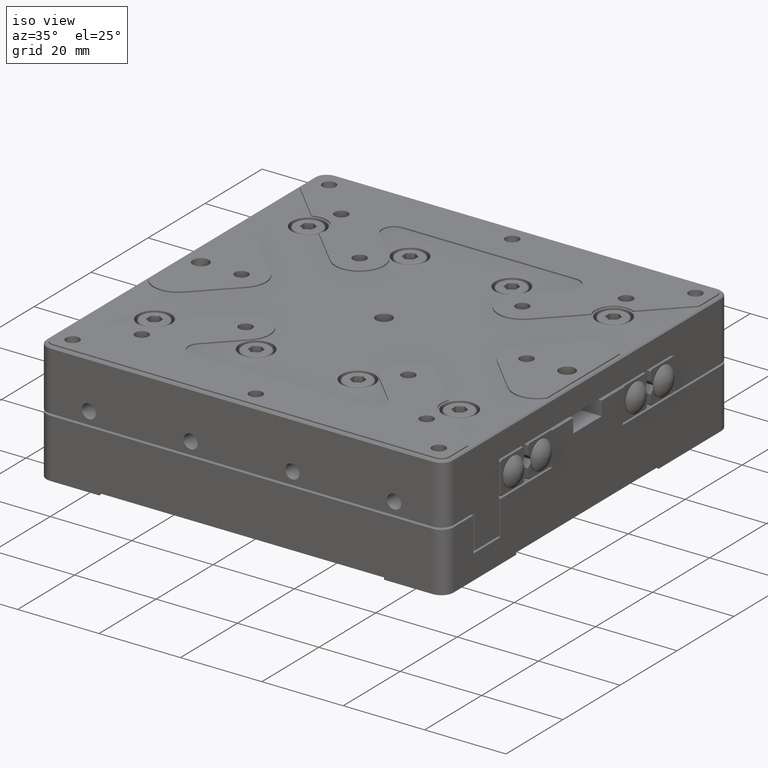
[diagram: clean part render]
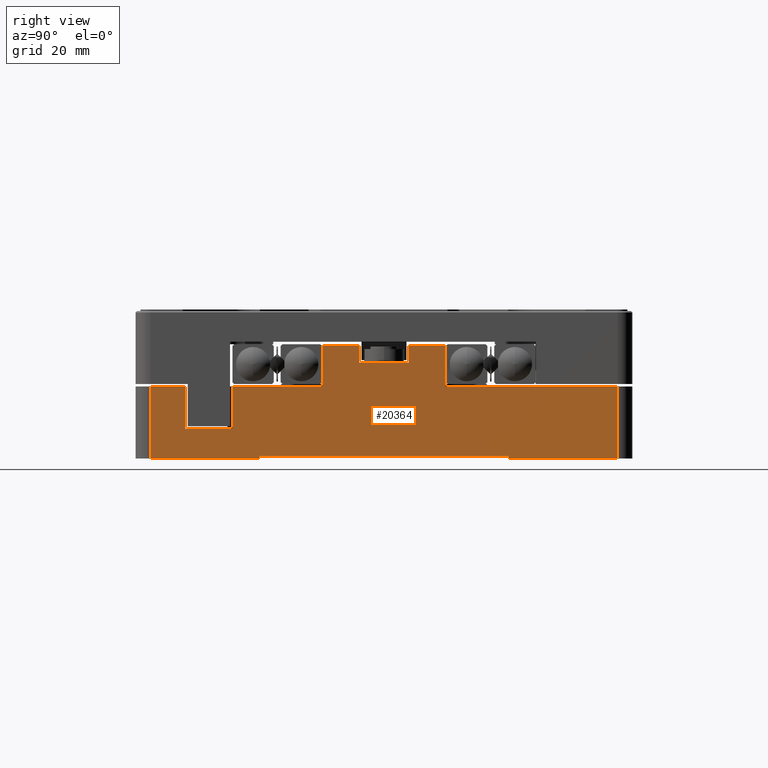
[diagram: tour spotlight — one face highlighted and labeled with its STEP entity id]
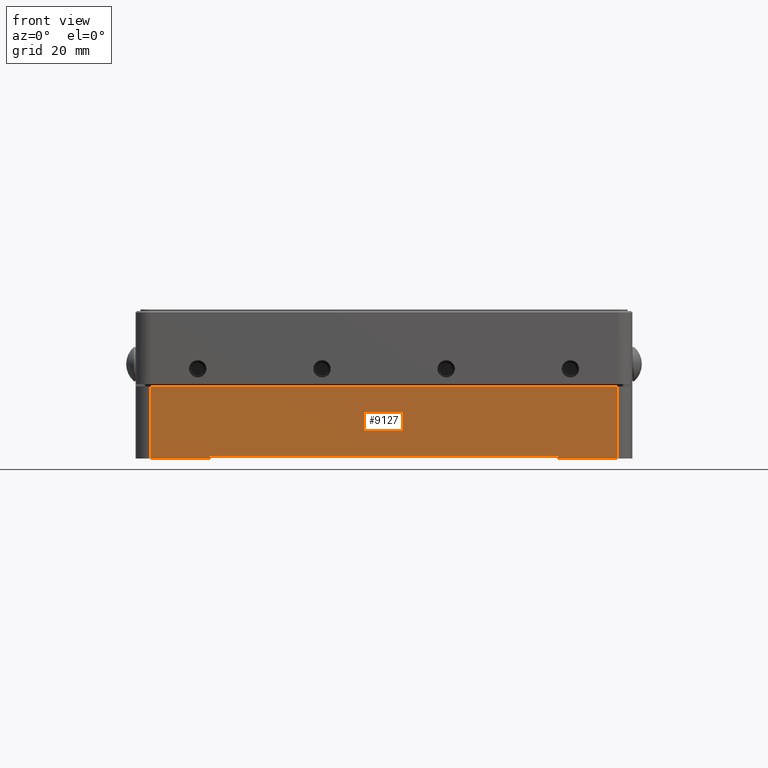
[diagram: tour spotlight — one face highlighted and labeled with its STEP entity id]
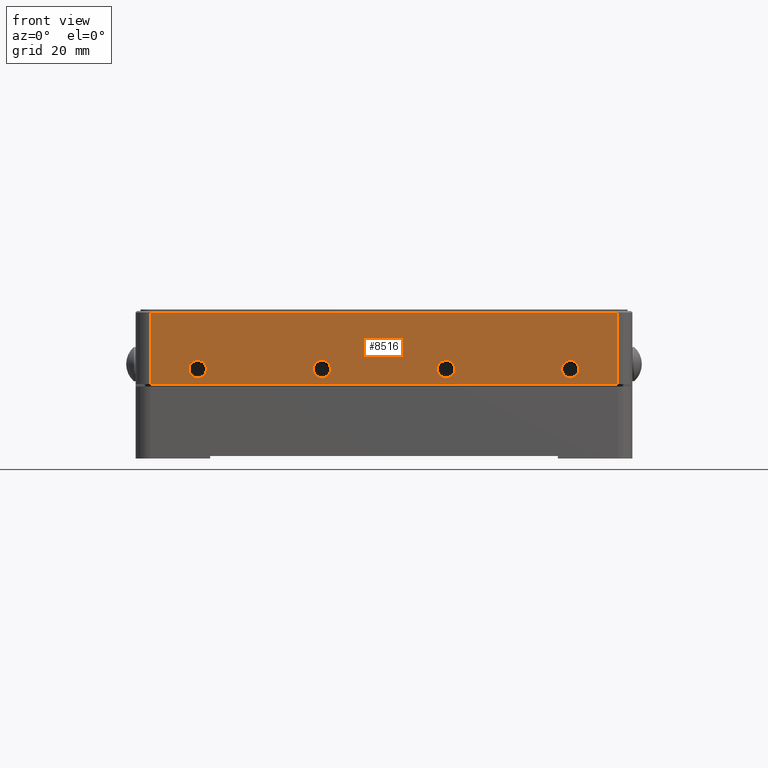
[diagram: tour spotlight — one face highlighted and labeled with its STEP entity id]
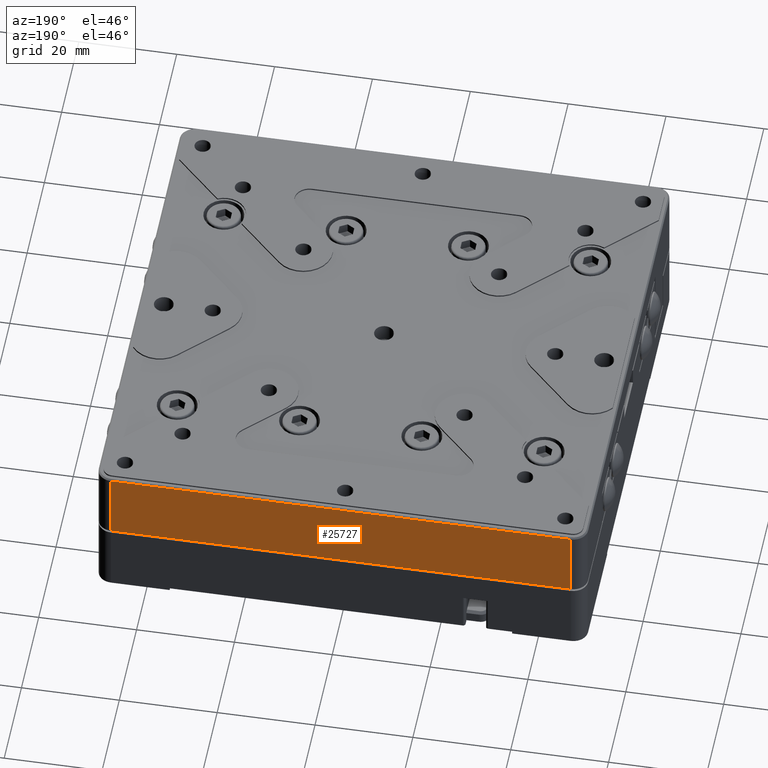
[diagram: tour spotlight — one face highlighted and labeled with its STEP entity id]
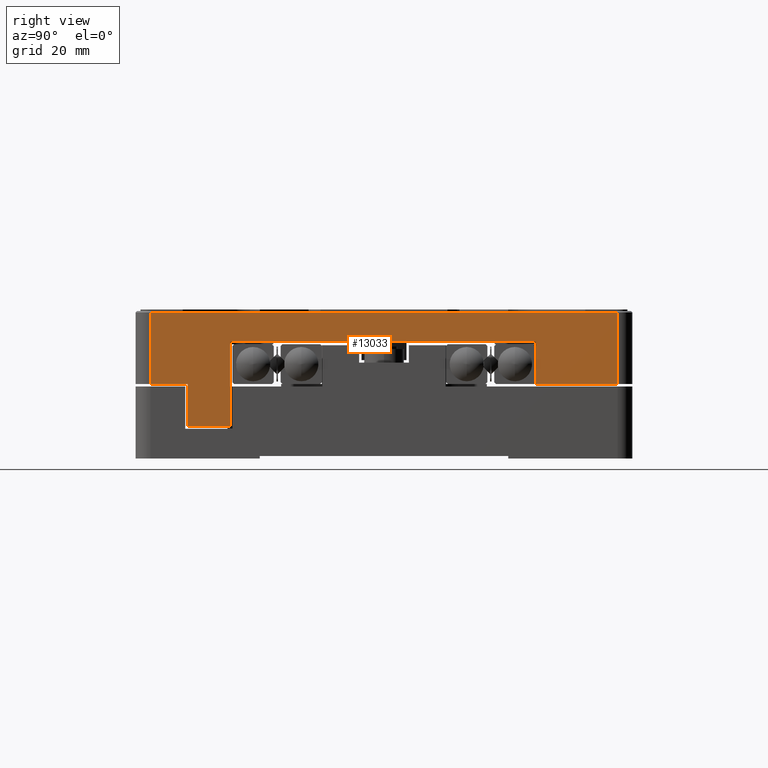
[diagram: tour spotlight — one face highlighted and labeled with its STEP entity id]
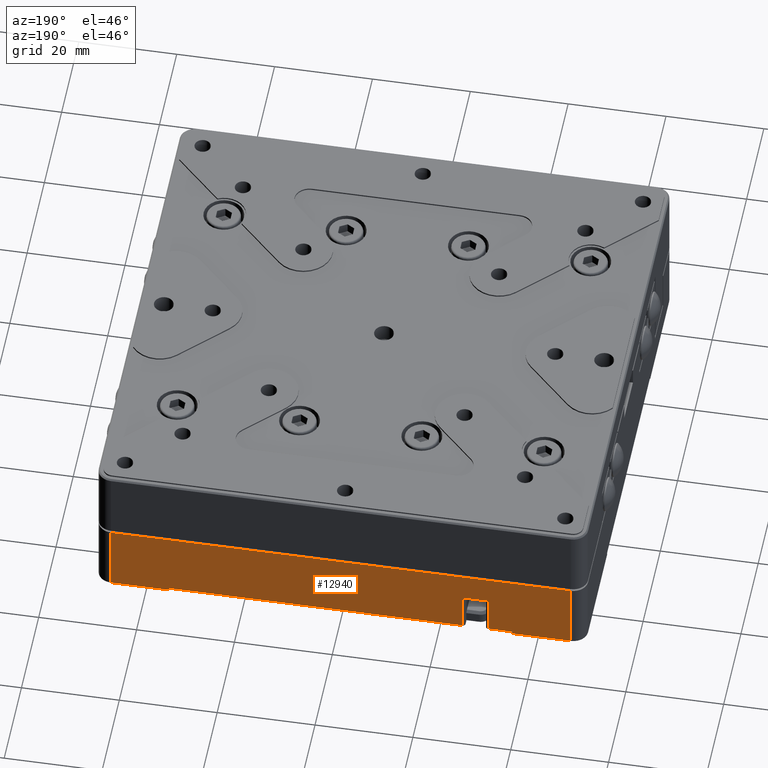
[diagram: tour spotlight — one face highlighted and labeled with its STEP entity id]
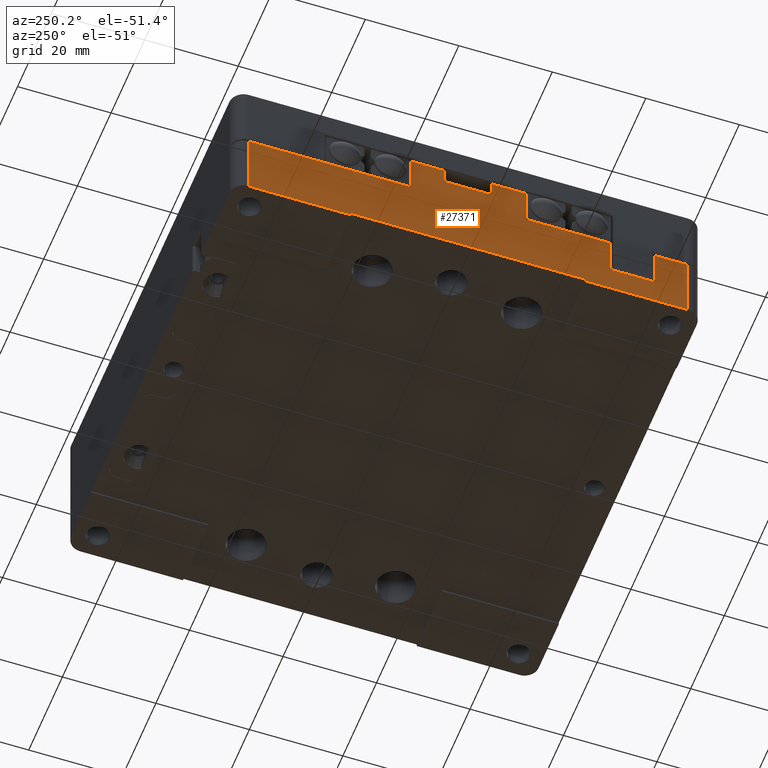
[diagram: tour spotlight — one face highlighted and labeled with its STEP entity id]
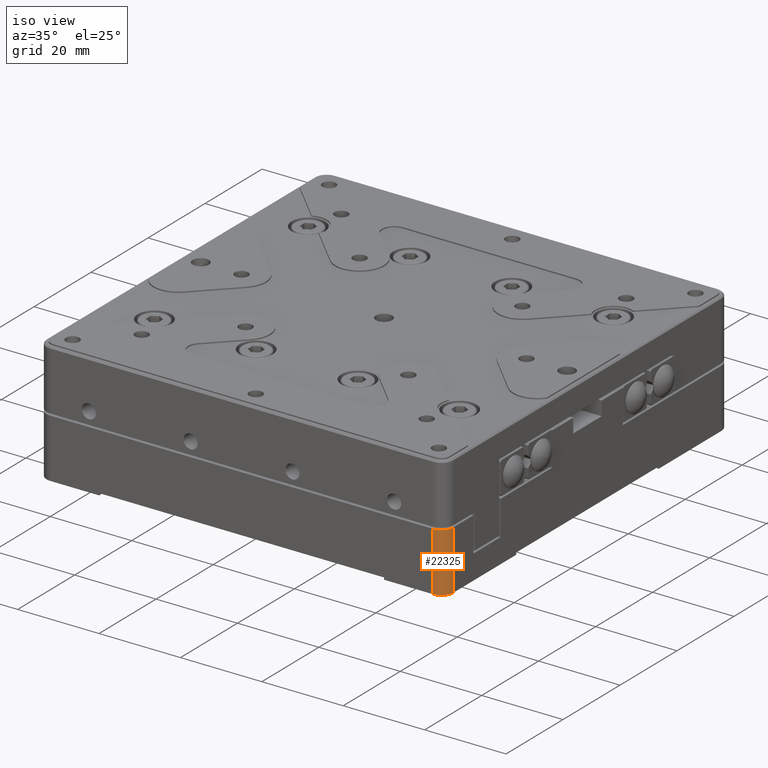
[diagram: tour spotlight — one face highlighted and labeled with its STEP entity id]
A machine part: a face-by-face anatomy tour. The part has 1403 B-rep faces; the first image is the clean iso view, then the 8 largest visible faces are spotlighted one at a time (largest first), each with its STEP entity span.

Face 1 — right view, entity #20364. In plain terms, the highlighted planar face has unit normal (1, 0, 0).
Definition (entity closure, byte-faithful):
#201 = CARTESIAN_POINT ( 'NONE',  ( 50.00000000000000000, 47.00000000000000000, 0.000000000000000000 ) ) ;
#522 = DIRECTION ( 'NONE',  ( 0.000000000000000000, 0.000000000000000000, -1.000000000000000000 ) ) ;
#1009 = VECTOR ( 'NONE', #23038, 1000.000000000000000 ) ;
#1131 = AXIS2_PLACEMENT_3D ( 'NONE', #26872, #16626, #5464 ) ;
#1197 = EDGE_CURVE ( 'NONE', #8917, #27617, #27190, .T. ) ;
#1225 = DIRECTION ( 'NONE',  ( 0.000000000000000000, 0.000000000000000000, 1.000000000000000000 ) ) ;
#1318 = LINE ( 'NONE', #27023, #13558 ) ;
#1514 = ORIENTED_EDGE ( 'NONE', *, *, #5595, .T. ) ;
#1707 = FACE_OUTER_BOUND ( 'NONE', #24950, .T. ) ;
#1816 = EDGE_CURVE ( 'NONE', #11600, #15890, #4771, .T. ) ;
#2219 = VERTEX_POINT ( 'NONE', #2321 ) ;
#2222 = ORIENTED_EDGE ( 'NONE', *, *, #13222, .T. ) ;
#2297 = EDGE_CURVE ( 'NONE', #23286, #4731, #19935, .T. ) ;
#2321 = CARTESIAN_POINT ( 'NONE',  ( 50.00000000000000000, -30.50000000000000000, -8.500000000000000000 ) ) ;
#2420 = ORIENTED_EDGE ( 'NONE', *, *, #22416, .T. ) ;
#2485 = ORIENTED_EDGE ( 'NONE', *, *, #19881, .T. ) ;
#2550 = VECTOR ( 'NONE', #12262, 1000.000000000000000 ) ;
#2660 = CARTESIAN_POINT ( 'NONE',  ( 50.00000000000000000, 12.40000000000000036, 0.000000000000000000 ) ) ;
#2682 = DIRECTION ( 'NONE',  ( 0.000000000000000000, 1.000000000000000000, 0.000000000000000000 ) ) ;
#2839 = VECTOR ( 'NONE', #5918, 1000.000000000000000 ) ;
#3008 = VECTOR ( 'NONE', #12394, 1000.000000000000000 ) ;
#3176 = CARTESIAN_POINT ( 'NONE',  ( 50.00000000000000000, -5.000000000000000000, 0.000000000000000000 ) ) ;
#3252 = VECTOR ( 'NONE', #4149, 1000.000000000000000 ) ;
#3451 = LINE ( 'NONE', #11835, #25353 ) ;
#3572 = DIRECTION ( 'NONE',  ( 0.000000000000000000, 0.000000000000000000, 1.000000000000000000 ) ) ;
#4046 = DIRECTION ( 'NONE',  ( 0.000000000000000000, 1.000000000000000000, 0.000000000000000000 ) ) ;
#4149 = DIRECTION ( 'NONE',  ( 0.000000000000000000, 0.000000000000000000, -1.000000000000000000 ) ) ;
#4339 = VECTOR ( 'NONE', #3572, 1000.000000000000000 ) ;
#4351 = EDGE_CURVE ( 'NONE', #16402, #23364, #10168, .T. ) ;
#4366 = ORIENTED_EDGE ( 'NONE', *, *, #20967, .T. ) ;
#4583 = EDGE_CURVE ( 'NONE', #17465, #27617, #5121, .T. ) ;
#4715 = VECTOR ( 'NONE', #20893, 1000.000000000000000 ) ;
#4731 = VERTEX_POINT ( 'NONE', #16550 ) ;
#4771 = LINE ( 'NONE', #17195, #11270 ) ;
#5121 = LINE ( 'NONE', #22056, #19027 ) ;
#5292 = LINE ( 'NONE', #14221, #5987 ) ;
#5464 = DIRECTION ( 'NONE',  ( 0.000000000000000000, 1.000000000000000000, 0.000000000000000000 ) ) ;
#5477 = DIRECTION ( 'NONE',  ( 0.000000000000000000, -1.000000000000000000, 0.000000000000000000 ) ) ;
#5504 = ORIENTED_EDGE ( 'NONE', *, *, #13840, .T. ) ;
#5595 = EDGE_CURVE ( 'NONE', #24584, #24875, #27514, .T. ) ;
#5918 = DIRECTION ( 'NONE',  ( 0.000000000000000000, -1.000000000000000000, 0.000000000000000000 ) ) ;
#5930 = EDGE_CURVE ( 'NONE', #7954, #11963, #16285, .T. ) ;
#5987 = VECTOR ( 'NONE', #24462, 1000.000000000000000 ) ;
#6113 = LINE ( 'NONE', #22906, #3252 ) ;
#6737 = CARTESIAN_POINT ( 'NONE',  ( 50.00000000000000000, -40.00000000000000000, 0.000000000000000000 ) ) ;
#6810 = CARTESIAN_POINT ( 'NONE',  ( 50.00000000000000000, -12.40000000000000036, 8.300000000000000711 ) ) ;
#7096 = DIRECTION ( 'NONE',  ( 0.000000000000000000, -1.000000000000000000, 0.000000000000000000 ) ) ;
#7204 = VERTEX_POINT ( 'NONE', #2660 ) ;
#7954 = VERTEX_POINT ( 'NONE', #26864 ) ;
#8221 = ORIENTED_EDGE ( 'NONE', *, *, #18940, .T. ) ;
#8914 = CARTESIAN_POINT ( 'NONE',  ( 50.00000000000000000, 0.000000000000000000, 0.000000000000000000 ) ) ;
#8917 = VERTEX_POINT ( 'NONE', #23743 ) ;
#8990 = ORIENTED_EDGE ( 'NONE', *, *, #4351, .T. ) ;
#9611 = ORIENTED_EDGE ( 'NONE', *, *, #19557, .T. ) ;
#9741 = LINE ( 'NONE', #3176, #19446 ) ;
#9998 = VECTOR ( 'NONE', #13096, 1000.000000000000000 ) ;
#10116 = CARTESIAN_POINT ( 'NONE',  ( 50.00000000000000000, 0.000000000000000000, -14.00000000000000000 ) ) ;
#10168 = LINE ( 'NONE', #25138, #3008 ) ;
#10294 = LINE ( 'NONE', #27228, #13573 ) ;
#10470 = CARTESIAN_POINT ( 'NONE',  ( 50.00000000000000000, 12.40000000000000036, 8.300000000000000711 ) ) ;
#10573 = CARTESIAN_POINT ( 'NONE',  ( 50.00000000000000000, 0.000000000000000000, 8.300000000000000711 ) ) ;
#10754 = DIRECTION ( 'NONE',  ( 0.000000000000000000, 0.000000000000000000, -1.000000000000000000 ) ) ;
#10917 = DIRECTION ( 'NONE',  ( 0.000000000000000000, -1.000000000000000000, 0.000000000000000000 ) ) ;
#11019 = ORIENTED_EDGE ( 'NONE', *, *, #26361, .T. ) ;
#11270 = VECTOR ( 'NONE', #10917, 1000.000000000000000 ) ;
#11303 = VECTOR ( 'NONE', #522, 1000.000000000000000 ) ;
#11568 = VERTEX_POINT ( 'NONE', #17899 ) ;
#11600 = VERTEX_POINT ( 'NONE', #13831 ) ;
#11658 = CARTESIAN_POINT ( 'NONE',  ( 50.00000000000000000, -30.50000000000000000, 0.000000000000000000 ) ) ;
#11663 = EDGE_CURVE ( 'NONE', #8917, #12564, #21487, .T. ) ;
#11835 = CARTESIAN_POINT ( 'NONE',  ( 50.00000000000000000, 0.000000000000000000, 4.799999999999999822 ) ) ;
#11963 = VERTEX_POINT ( 'NONE', #201 ) ;
#12262 = DIRECTION ( 'NONE',  ( 0.000000000000000000, -1.000000000000000000, 0.000000000000000000 ) ) ;
#12382 = VERTEX_POINT ( 'NONE', #17557 ) ;
#12394 = DIRECTION ( 'NONE',  ( 0.000000000000000000, -1.000000000000000000, 0.000000000000000000 ) ) ;
#12400 = CARTESIAN_POINT ( 'NONE',  ( 50.00000000000000000, -5.000000000000000000, 8.300000000000000711 ) ) ;
#12564 = VERTEX_POINT ( 'NONE', #25104 ) ;
#13096 = DIRECTION ( 'NONE',  ( 0.000000000000000000, -1.000000000000000000, 0.000000000000000000 ) ) ;
#13222 = EDGE_CURVE ( 'NONE', #11568, #17465, #21852, .T. ) ;
#13558 = VECTOR ( 'NONE', #5477, 1000.000000000000000 ) ;
#13573 = VECTOR ( 'NONE', #20651, 1000.000000000000000 ) ;
#13831 = CARTESIAN_POINT ( 'NONE',  ( 50.00000000000000000, -12.40000000000000036, 0.000000000000000000 ) ) ;
#13840 = EDGE_CURVE ( 'NONE', #18094, #16402, #5292, .T. ) ;
#13938 = EDGE_CURVE ( 'NONE', #24875, #11600, #6113, .T. ) ;
#14210 = CARTESIAN_POINT ( 'NONE',  ( 50.00000000000000000, 5.000000000000000000, 4.799999999999999822 ) ) ;
#14221 = CARTESIAN_POINT ( 'NONE',  ( 50.00000000000000000, -40.00000000000000000, 0.000000000000000000 ) ) ;
#14320 = ORIENTED_EDGE ( 'NONE', *, *, #24316, .T. ) ;
#14621 = CARTESIAN_POINT ( 'NONE',  ( 50.00000000000000000, 25.00000000000000000, 0.000000000000000000 ) ) ;
#14652 = CARTESIAN_POINT ( 'NONE',  ( 50.00000000000000000, -47.00000000000000000, 0.000000000000000000 ) ) ;
#15198 = LINE ( 'NONE', #8914, #9998 ) ;
#15632 = ORIENTED_EDGE ( 'NONE', *, *, #1816, .T. ) ;
#15859 = ORIENTED_EDGE ( 'NONE', *, *, #16659, .T. ) ;
#15890 = VERTEX_POINT ( 'NONE', #24670 ) ;
#15996 = LINE ( 'NONE', #11658, #11303 ) ;
#16285 = LINE ( 'NONE', #22737, #4339 ) ;
#16402 = VERTEX_POINT ( 'NONE', #6737 ) ;
#16550 = CARTESIAN_POINT ( 'NONE',  ( 50.00000000000000000, 5.000000000000000000, 8.300000000000000711 ) ) ;
#16626 = DIRECTION ( 'NONE',  ( 1.000000000000000000, 0.000000000000000000, 0.000000000000000000 ) ) ;
#16645 = VECTOR ( 'NONE', #17412, 1000.000000000000000 ) ;
#16659 = EDGE_CURVE ( 'NONE', #12564, #7954, #27007, .T. ) ;
#17165 = ORIENTED_EDGE ( 'NONE', *, *, #11663, .T. ) ;
#17178 = CARTESIAN_POINT ( 'NONE',  ( 50.00000000000000000, -47.00000000000000000, 0.000000000000000000 ) ) ;
#17195 = CARTESIAN_POINT ( 'NONE',  ( 50.00000000000000000, 0.000000000000000000, 0.000000000000000000 ) ) ;
#17412 = DIRECTION ( 'NONE',  ( 0.000000000000000000, -1.000000000000000000, 0.000000000000000000 ) ) ;
#17465 = VERTEX_POINT ( 'NONE', #22739 ) ;
#17557 = CARTESIAN_POINT ( 'NONE',  ( 50.00000000000000000, -5.000000000000000000, 4.799999999999999822 ) ) ;
#17886 = CARTESIAN_POINT ( 'NONE',  ( 50.00000000000000000, -40.00000000000000000, -8.500000000000000000 ) ) ;
#17899 = CARTESIAN_POINT ( 'NONE',  ( 50.00000000000000000, -47.00000000000000000, -14.50000000000000000 ) ) ;
#18094 = VERTEX_POINT ( 'NONE', #17886 ) ;
#18744 = PLANE ( 'NONE',  #1131 ) ;
#18940 = EDGE_CURVE ( 'NONE', #15890, #2219, #15996, .T. ) ;
#19027 = VECTOR ( 'NONE', #1225, 1000.000000000000000 ) ;
#19446 = VECTOR ( 'NONE', #20228, 1000.000000000000000 ) ;
#19557 = EDGE_CURVE ( 'NONE', #2219, #18094, #1318, .T. ) ;
#19655 = CARTESIAN_POINT ( 'NONE',  ( 50.00000000000000000, 0.000000000000000000, 8.300000000000000711 ) ) ;
#19881 = EDGE_CURVE ( 'NONE', #7204, #23286, #10294, .T. ) ;
#19912 = VERTEX_POINT ( 'NONE', #14210 ) ;
#19935 = LINE ( 'NONE', #19655, #16645 ) ;
#20228 = DIRECTION ( 'NONE',  ( 0.000000000000000000, 0.000000000000000000, 1.000000000000000000 ) ) ;
#20364 = ADVANCED_FACE ( 'NONE', ( #1707 ), #18744, .T. ) ;
#20609 = LINE ( 'NONE', #27323, #4715 ) ;
#20651 = DIRECTION ( 'NONE',  ( 0.000000000000000000, 0.000000000000000000, 1.000000000000000000 ) ) ;
#20893 = DIRECTION ( 'NONE',  ( 0.000000000000000000, 0.000000000000000000, -1.000000000000000000 ) ) ;
#20967 = EDGE_CURVE ( 'NONE', #11963, #7204, #15198, .T. ) ;
#21013 = ORIENTED_EDGE ( 'NONE', *, *, #13938, .T. ) ;
#21487 = LINE ( 'NONE', #14621, #1009 ) ;
#21852 = LINE ( 'NONE', #25903, #23843 ) ;
#22056 = CARTESIAN_POINT ( 'NONE',  ( 50.00000000000000000, -25.00000000000000000, -14.50000000000000000 ) ) ;
#22416 = EDGE_CURVE ( 'NONE', #12382, #24584, #9741, .T. ) ;
#22737 = CARTESIAN_POINT ( 'NONE',  ( 50.00000000000000000, 47.00000000000000000, 0.000000000000000000 ) ) ;
#22739 = CARTESIAN_POINT ( 'NONE',  ( 50.00000000000000000, -25.00000000000000000, -14.50000000000000000 ) ) ;
#22906 = CARTESIAN_POINT ( 'NONE',  ( 50.00000000000000000, -12.40000000000000036, 0.000000000000000000 ) ) ;
#23038 = DIRECTION ( 'NONE',  ( 0.000000000000000000, 0.000000000000000000, -1.000000000000000000 ) ) ;
#23209 = CARTESIAN_POINT ( 'NONE',  ( 50.00000000000000000, 0.000000000000000000, -14.50000000000000000 ) ) ;
#23286 = VERTEX_POINT ( 'NONE', #10470 ) ;
#23364 = VERTEX_POINT ( 'NONE', #14652 ) ;
#23619 = ORIENTED_EDGE ( 'NONE', *, *, #4583, .T. ) ;
#23743 = CARTESIAN_POINT ( 'NONE',  ( 50.00000000000000000, 25.00000000000000000, -14.00000000000000000 ) ) ;
#23843 = VECTOR ( 'NONE', #2682, 1000.000000000000000 ) ;
#23919 = LINE ( 'NONE', #17178, #24908 ) ;
#24253 = ORIENTED_EDGE ( 'NONE', *, *, #27021, .T. ) ;
#24316 = EDGE_CURVE ( 'NONE', #23364, #11568, #23919, .T. ) ;
#24462 = DIRECTION ( 'NONE',  ( 0.000000000000000000, 0.000000000000000000, 1.000000000000000000 ) ) ;
#24584 = VERTEX_POINT ( 'NONE', #12400 ) ;
#24670 = CARTESIAN_POINT ( 'NONE',  ( 50.00000000000000000, -30.50000000000000000, 0.000000000000000000 ) ) ;
#24676 = ORIENTED_EDGE ( 'NONE', *, *, #1197, .F. ) ;
#24875 = VERTEX_POINT ( 'NONE', #6810 ) ;
#24908 = VECTOR ( 'NONE', #10754, 1000.000000000000000 ) ;
#24950 = EDGE_LOOP ( 'NONE', ( #1514, #21013, #15632, #8221, #9611, #5504, #8990, #14320, #2222, #23619, #24676, #17165, #15859, #26579, #4366, #2485, #27469, #24253, #11019, #2420 ) ) ;
#25104 = CARTESIAN_POINT ( 'NONE',  ( 50.00000000000000000, 25.00000000000000000, -14.50000000000000000 ) ) ;
#25138 = CARTESIAN_POINT ( 'NONE',  ( 50.00000000000000000, 0.000000000000000000, 0.000000000000000000 ) ) ;
#25353 = VECTOR ( 'NONE', #7096, 1000.000000000000000 ) ;
#25476 = VECTOR ( 'NONE', #4046, 1000.000000000000000 ) ;
#25903 = CARTESIAN_POINT ( 'NONE',  ( 50.00000000000000000, 0.000000000000000000, -14.50000000000000000 ) ) ;
#26361 = EDGE_CURVE ( 'NONE', #19912, #12382, #3451, .T. ) ;
#26441 = CARTESIAN_POINT ( 'NONE',  ( 50.00000000000000000, -25.00000000000000000, -14.00000000000000000 ) ) ;
#26579 = ORIENTED_EDGE ( 'NONE', *, *, #5930, .T. ) ;
#26864 = CARTESIAN_POINT ( 'NONE',  ( 50.00000000000000000, 47.00000000000000000, -14.50000000000000000 ) ) ;
#26872 = CARTESIAN_POINT ( 'NONE',  ( 50.00000000000000000, 0.000000000000000000, 0.000000000000000000 ) ) ;
#27007 = LINE ( 'NONE', #23209, #25476 ) ;
#27021 = EDGE_CURVE ( 'NONE', #4731, #19912, #20609, .T. ) ;
#27023 = CARTESIAN_POINT ( 'NONE',  ( 50.00000000000000000, 0.000000000000000000, -8.500000000000000000 ) ) ;
#27190 = LINE ( 'NONE', #10116, #2839 ) ;
#27228 = CARTESIAN_POINT ( 'NONE',  ( 50.00000000000000000, 12.40000000000000036, 0.000000000000000000 ) ) ;
#27323 = CARTESIAN_POINT ( 'NONE',  ( 50.00000000000000000, 5.000000000000000000, 0.000000000000000000 ) ) ;
#27469 = ORIENTED_EDGE ( 'NONE', *, *, #2297, .T. ) ;
#27514 = LINE ( 'NONE', #10573, #2550 ) ;
#27617 = VERTEX_POINT ( 'NONE', #26441 ) ;

Face 2 — front view, entity #9127. In plain terms, the highlighted planar face has unit normal (0, -1, 0).
Definition (entity closure, byte-faithful):
#219 = CARTESIAN_POINT ( 'NONE',  ( 35.00000000000000000, -50.00000000000000000, -14.50000000000000000 ) ) ;
#296 = VECTOR ( 'NONE', #464, 1000.000000000000000 ) ;
#373 = LINE ( 'NONE', #10684, #14113 ) ;
#464 = DIRECTION ( 'NONE',  ( 1.000000000000000000, 0.000000000000000000, 0.000000000000000000 ) ) ;
#745 = ORIENTED_EDGE ( 'NONE', *, *, #16310, .T. ) ;
#811 = VERTEX_POINT ( 'NONE', #25395 ) ;
#1542 = CARTESIAN_POINT ( 'NONE',  ( -35.00000000000000000, -50.00000000000000000, -14.50000000000000000 ) ) ;
#1613 = CARTESIAN_POINT ( 'NONE',  ( 47.00000000000000000, -50.00000000000000000, 0.000000000000000000 ) ) ;
#2016 = ORIENTED_EDGE ( 'NONE', *, *, #4910, .T. ) ;
#2714 = ORIENTED_EDGE ( 'NONE', *, *, #27623, .T. ) ;
#3566 = VECTOR ( 'NONE', #26046, 1000.000000000000000 ) ;
#4910 = EDGE_CURVE ( 'NONE', #26881, #6423, #373, .T. ) ;
#6423 = VERTEX_POINT ( 'NONE', #14423 ) ;
#6879 = CARTESIAN_POINT ( 'NONE',  ( -50.00000000000000000, -50.00000000000000000, -14.50000000000000000 ) ) ;
#6896 = CARTESIAN_POINT ( 'NONE',  ( -47.00000000000000000, -50.00000000000000000, 0.000000000000000000 ) ) ;
#7089 = DIRECTION ( 'NONE',  ( 0.000000000000000000, 0.000000000000000000, 1.000000000000000000 ) ) ;
#7358 = EDGE_CURVE ( 'NONE', #8446, #24374, #20540, .T. ) ;
#7406 = LINE ( 'NONE', #15801, #296 ) ;
#7472 = DIRECTION ( 'NONE',  ( 0.000000000000000000, 0.000000000000000000, -1.000000000000000000 ) ) ;
#7529 = VECTOR ( 'NONE', #18716, 1000.000000000000000 ) ;
#8446 = VERTEX_POINT ( 'NONE', #15648 ) ;
#8850 = ORIENTED_EDGE ( 'NONE', *, *, #15321, .T. ) ;
#8867 = DIRECTION ( 'NONE',  ( -1.000000000000000000, 0.000000000000000000, 0.000000000000000000 ) ) ;
#9127 = ADVANCED_FACE ( 'NONE', ( #20640 ), #16434, .T. ) ;
#9957 = LINE ( 'NONE', #6879, #3566 ) ;
#10069 = CARTESIAN_POINT ( 'NONE',  ( 47.00000000000000000, -50.00000000000000000, -14.50000000000000000 ) ) ;
#10417 = CARTESIAN_POINT ( 'NONE',  ( -50.00000000000000000, -50.00000000000000000, 0.000000000000000000 ) ) ;
#10684 = CARTESIAN_POINT ( 'NONE',  ( -50.00000000000000000, -50.00000000000000000, 0.000000000000000000 ) ) ;
#11009 = VERTEX_POINT ( 'NONE', #219 ) ;
#11420 = CARTESIAN_POINT ( 'NONE',  ( 47.00000000000000000, -50.00000000000000000, 0.000000000000000000 ) ) ;
#11926 = EDGE_LOOP ( 'NONE', ( #12327, #21955, #27182, #745, #8850, #2016, #14206, #2714 ) ) ;
#12327 = ORIENTED_EDGE ( 'NONE', *, *, #7358, .T. ) ;
#13152 = VECTOR ( 'NONE', #7089, 1000.000000000000000 ) ;
#13946 = CARTESIAN_POINT ( 'NONE',  ( 0.000000000000000000, -50.00000000000000000, -14.00000000000000000 ) ) ;
#14113 = VECTOR ( 'NONE', #8867, 1000.000000000000000 ) ;
#14206 = ORIENTED_EDGE ( 'NONE', *, *, #27248, .T. ) ;
#14423 = CARTESIAN_POINT ( 'NONE',  ( -47.00000000000000000, -50.00000000000000000, 0.000000000000000000 ) ) ;
#15321 = EDGE_CURVE ( 'NONE', #24242, #26881, #17706, .T. ) ;
#15420 = DIRECTION ( 'NONE',  ( 0.000000000000000000, 0.000000000000000000, -1.000000000000000000 ) ) ;
#15648 = CARTESIAN_POINT ( 'NONE',  ( -35.00000000000000000, -50.00000000000000000, -14.50000000000000000 ) ) ;
#15801 = CARTESIAN_POINT ( 'NONE',  ( -50.00000000000000000, -50.00000000000000000, -14.50000000000000000 ) ) ;
#15841 = VECTOR ( 'NONE', #7472, 1000.000000000000000 ) ;
#15914 = DIRECTION ( 'NONE',  ( -1.000000000000000000, 0.000000000000000000, 0.000000000000000000 ) ) ;
#16310 = EDGE_CURVE ( 'NONE', #11009, #24242, #9957, .T. ) ;
#16434 = PLANE ( 'NONE',  #23183 ) ;
#16892 = EDGE_CURVE ( 'NONE', #811, #24374, #24055, .T. ) ;
#17706 = LINE ( 'NONE', #11420, #13152 ) ;
#18716 = DIRECTION ( 'NONE',  ( 0.000000000000000000, 0.000000000000000000, 1.000000000000000000 ) ) ;
#19185 = CARTESIAN_POINT ( 'NONE',  ( -47.00000000000000000, -50.00000000000000000, -14.50000000000000000 ) ) ;
#19785 = CARTESIAN_POINT ( 'NONE',  ( 35.00000000000000000, -50.00000000000000000, 0.000000000000000000 ) ) ;
#20540 = LINE ( 'NONE', #1542, #7529 ) ;
#20640 = FACE_OUTER_BOUND ( 'NONE', #11926, .T. ) ;
#21054 = DIRECTION ( 'NONE',  ( 0.000000000000000000, -1.000000000000000000, 0.000000000000000000 ) ) ;
#21268 = VERTEX_POINT ( 'NONE', #19185 ) ;
#21823 = CARTESIAN_POINT ( 'NONE',  ( -35.00000000000000000, -50.00000000000000000, -14.00000000000000000 ) ) ;
#21955 = ORIENTED_EDGE ( 'NONE', *, *, #16892, .F. ) ;
#23183 = AXIS2_PLACEMENT_3D ( 'NONE', #10417, #21054, #25526 ) ;
#24055 = LINE ( 'NONE', #13946, #24615 ) ;
#24242 = VERTEX_POINT ( 'NONE', #10069 ) ;
#24374 = VERTEX_POINT ( 'NONE', #21823 ) ;
#24615 = VECTOR ( 'NONE', #15914, 1000.000000000000000 ) ;
#25395 = CARTESIAN_POINT ( 'NONE',  ( 35.00000000000000000, -50.00000000000000000, -14.00000000000000000 ) ) ;
#25526 = DIRECTION ( 'NONE',  ( 0.000000000000000000, 0.000000000000000000, -1.000000000000000000 ) ) ;
#26046 = DIRECTION ( 'NONE',  ( 1.000000000000000000, 0.000000000000000000, 0.000000000000000000 ) ) ;
#26063 = LINE ( 'NONE', #6896, #27060 ) ;
#26370 = LINE ( 'NONE', #19785, #15841 ) ;
#26830 = EDGE_CURVE ( 'NONE', #811, #11009, #26370, .T. ) ;
#26881 = VERTEX_POINT ( 'NONE', #1613 ) ;
#27060 = VECTOR ( 'NONE', #15420, 1000.000000000000000 ) ;
#27182 = ORIENTED_EDGE ( 'NONE', *, *, #26830, .T. ) ;
#27248 = EDGE_CURVE ( 'NONE', #6423, #21268, #26063, .T. ) ;
#27623 = EDGE_CURVE ( 'NONE', #21268, #8446, #7406, .T. ) ;

Face 3 — front view, entity #8516. In plain terms, the highlighted planar face has unit normal (0, -1, 0).
Definition (entity closure, byte-faithful):
#149 = ORIENTED_EDGE ( 'NONE', *, *, #321, .T. ) ;
#321 = EDGE_CURVE ( 'NONE', #7145, #6562, #20639, .T. ) ;
#392 = EDGE_CURVE ( 'NONE', #416, #4024, #10600, .T. ) ;
#416 = VERTEX_POINT ( 'NONE', #8358 ) ;
#452 = FACE_OUTER_BOUND ( 'NONE', #20508, .T. ) ;
#641 = AXIS2_PLACEMENT_3D ( 'NONE', #9084, #11314, #2522 ) ;
#814 = CARTESIAN_POINT ( 'NONE',  ( -50.00000000000000000, -50.00000000000000000, 14.90000000000000036 ) ) ;
#937 = CARTESIAN_POINT ( 'NONE',  ( -12.50000000000000000, -50.00000000000000000, 3.500000000000000000 ) ) ;
#961 = EDGE_LOOP ( 'NONE', ( #8256, #26084 ) ) ;
#1385 = DIRECTION ( 'NONE',  ( -1.000000000000000000, 0.000000000000000000, 0.000000000000000000 ) ) ;
#1453 = EDGE_CURVE ( 'NONE', #10210, #11977, #26064, .T. ) ;
#1854 = CARTESIAN_POINT ( 'NONE',  ( -12.50000000000000000, -50.00000000000000000, 1.750000000000000000 ) ) ;
#2081 = CARTESIAN_POINT ( 'NONE',  ( 12.50000000000000000, -50.00000000000000000, 3.500000000000000000 ) ) ;
#2522 = DIRECTION ( 'NONE',  ( 0.000000000000000000, 0.000000000000000000, -1.000000000000000000 ) ) ;
#2922 = CIRCLE ( 'NONE', #13632, 1.750000000000000000 ) ;
#3272 = VERTEX_POINT ( 'NONE', #26858 ) ;
#3564 = AXIS2_PLACEMENT_3D ( 'NONE', #5172, #13689, #21834 ) ;
#3861 = CARTESIAN_POINT ( 'NONE',  ( -37.50000000000000000, -50.00000000000000000, 3.500000000000000000 ) ) ;
#4024 = VERTEX_POINT ( 'NONE', #13122 ) ;
#4119 = DIRECTION ( 'NONE',  ( 0.000000000000000000, 0.000000000000000000, -1.000000000000000000 ) ) ;
#4444 = EDGE_LOOP ( 'NONE', ( #23581, #149 ) ) ;
#4915 = CIRCLE ( 'NONE', #21419, 1.750000000000000000 ) ;
#4964 = CARTESIAN_POINT ( 'NONE',  ( -12.50000000000000000, -50.00000000000000000, 5.250000000000000000 ) ) ;
#5024 = PLANE ( 'NONE',  #16074 ) ;
#5172 = CARTESIAN_POINT ( 'NONE',  ( 12.50000000000000000, -50.00000000000000000, 3.500000000000000000 ) ) ;
#5204 = CARTESIAN_POINT ( 'NONE',  ( 37.50000000000000000, -50.00000000000000000, 1.750000000000000000 ) ) ;
#5450 = VECTOR ( 'NONE', #12275, 1000.000000000000000 ) ;
#5614 = AXIS2_PLACEMENT_3D ( 'NONE', #937, #19788, #7066 ) ;
#5858 = ORIENTED_EDGE ( 'NONE', *, *, #392, .F. ) ;
#5989 = ORIENTED_EDGE ( 'NONE', *, *, #13701, .T. ) ;
#6230 = DIRECTION ( 'NONE',  ( 0.000000000000000000, 0.000000000000000000, -1.000000000000000000 ) ) ;
#6264 = DIRECTION ( 'NONE',  ( 0.000000000000000000, 0.000000000000000000, -1.000000000000000000 ) ) ;
#6562 = VERTEX_POINT ( 'NONE', #23244 ) ;
#6931 = ORIENTED_EDGE ( 'NONE', *, *, #12389, .T. ) ;
#7038 = CARTESIAN_POINT ( 'NONE',  ( -47.00000000000000000, -50.00000000000000000, -19.05400000000000205 ) ) ;
#7066 = DIRECTION ( 'NONE',  ( 0.000000000000000000, 0.000000000000000000, -1.000000000000000000 ) ) ;
#7145 = VERTEX_POINT ( 'NONE', #17887 ) ;
#7326 = CIRCLE ( 'NONE', #22967, 1.750000000000000000 ) ;
#7524 = DIRECTION ( 'NONE',  ( 0.000000000000000000, 0.000000000000000000, -1.000000000000000000 ) ) ;
#7701 = VECTOR ( 'NONE', #22321, 1000.000000000000000 ) ;
#8256 = ORIENTED_EDGE ( 'NONE', *, *, #26446, .T. ) ;
#8318 = CARTESIAN_POINT ( 'NONE',  ( -37.50000000000000000, -50.00000000000000000, 3.500000000000000000 ) ) ;
#8325 = DIRECTION ( 'NONE',  ( 0.000000000000000000, 1.000000000000000000, 0.000000000000000000 ) ) ;
#8358 = CARTESIAN_POINT ( 'NONE',  ( 46.99999953704890032, -49.99999999997729816, 14.90000000003414016 ) ) ;
#8516 = ADVANCED_FACE ( 'NONE', ( #452, #13135, #13410, #21689, #11045 ), #5024, .T. ) ;
#9084 = CARTESIAN_POINT ( 'NONE',  ( 37.50000000000000000, -50.00000000000000000, 3.500000000000000000 ) ) ;
#9721 = EDGE_CURVE ( 'NONE', #6562, #7145, #14692, .T. ) ;
#9743 = CARTESIAN_POINT ( 'NONE',  ( -50.00000000000000000, -50.00000000000000000, 0.5000000000000000000 ) ) ;
#9834 = VERTEX_POINT ( 'NONE', #16064 ) ;
#10210 = VERTEX_POINT ( 'NONE', #16034 ) ;
#10283 = EDGE_CURVE ( 'NONE', #4024, #10210, #20514, .T. ) ;
#10288 = DIRECTION ( 'NONE',  ( 0.000000000000000000, 1.000000000000000000, 0.000000000000000000 ) ) ;
#10600 = LINE ( 'NONE', #12682, #5450 ) ;
#10914 = ORIENTED_EDGE ( 'NONE', *, *, #10283, .F. ) ;
#11045 = FACE_BOUND ( 'NONE', #15959, .T. ) ;
#11314 = DIRECTION ( 'NONE',  ( 0.000000000000000000, 1.000000000000000000, 0.000000000000000000 ) ) ;
#11316 = DIRECTION ( 'NONE',  ( 0.000000000000000000, 0.000000000000000000, -1.000000000000000000 ) ) ;
#11635 = DIRECTION ( 'NONE',  ( 0.000000000000000000, 0.000000000000000000, 1.000000000000000000 ) ) ;
#11977 = VERTEX_POINT ( 'NONE', #14982 ) ;
#12275 = DIRECTION ( 'NONE',  ( 0.000000000000000000, 0.000000000000000000, -1.000000000000000000 ) ) ;
#12389 = EDGE_CURVE ( 'NONE', #416, #11977, #19942, .T. ) ;
#12682 = CARTESIAN_POINT ( 'NONE',  ( 46.99999814808410292, -49.99999999999939604, 35.05400000000000205 ) ) ;
#12700 = CIRCLE ( 'NONE', #641, 1.750000000000000000 ) ;
#13090 = VERTEX_POINT ( 'NONE', #1854 ) ;
#13122 = CARTESIAN_POINT ( 'NONE',  ( 46.99999907404200172, -50.00000000000000000, 0.5000000000000000000 ) ) ;
#13135 = FACE_BOUND ( 'NONE', #961, .T. ) ;
#13327 = ORIENTED_EDGE ( 'NONE', *, *, #22562, .T. ) ;
#13410 = FACE_BOUND ( 'NONE', #14119, .T. ) ;
#13485 = VECTOR ( 'NONE', #11635, 1000.000000000000000 ) ;
#13623 = CIRCLE ( 'NONE', #23003, 1.750000000000000000 ) ;
#13632 = AXIS2_PLACEMENT_3D ( 'NONE', #27497, #8325, #6230 ) ;
#13689 = DIRECTION ( 'NONE',  ( 0.000000000000000000, 1.000000000000000000, 0.000000000000000000 ) ) ;
#13701 = EDGE_CURVE ( 'NONE', #13090, #26849, #7326, .T. ) ;
#13854 = CARTESIAN_POINT ( 'NONE',  ( -37.50000000000000000, -50.00000000000000000, 5.250000000000000000 ) ) ;
#14119 = EDGE_LOOP ( 'NONE', ( #5989, #21998 ) ) ;
#14692 = CIRCLE ( 'NONE', #3564, 1.750000000000000000 ) ;
#14743 = DIRECTION ( 'NONE',  ( 0.000000000000000000, 0.000000000000000000, -1.000000000000000000 ) ) ;
#14776 = DIRECTION ( 'NONE',  ( 0.000000000000000000, 1.000000000000000000, 0.000000000000000000 ) ) ;
#14982 = CARTESIAN_POINT ( 'NONE',  ( -47.00000000013289991, -49.99999999997729816, 14.90000000003414016 ) ) ;
#15374 = CARTESIAN_POINT ( 'NONE',  ( -50.00000000000000000, -50.00000000000000000, 15.50000000000000000 ) ) ;
#15594 = EDGE_CURVE ( 'NONE', #26166, #9834, #4915, .T. ) ;
#15959 = EDGE_LOOP ( 'NONE', ( #13327, #26096 ) ) ;
#16034 = CARTESIAN_POINT ( 'NONE',  ( -47.00000000000000000, -50.00000000000000000, 0.5000000000000000000 ) ) ;
#16064 = CARTESIAN_POINT ( 'NONE',  ( -37.50000000000000000, -50.00000000000000000, 1.750000000000000000 ) ) ;
#16074 = AXIS2_PLACEMENT_3D ( 'NONE', #15374, #23923, #11316 ) ;
#17420 = VECTOR ( 'NONE', #1385, 1000.000000000000000 ) ;
#17887 = CARTESIAN_POINT ( 'NONE',  ( 12.50000000000000000, -50.00000000000000000, 5.250000000000000000 ) ) ;
#19398 = VERTEX_POINT ( 'NONE', #5204 ) ;
#19788 = DIRECTION ( 'NONE',  ( 0.000000000000000000, 1.000000000000000000, 0.000000000000000000 ) ) ;
#19942 = LINE ( 'NONE', #814, #7701 ) ;
#20170 = AXIS2_PLACEMENT_3D ( 'NONE', #2081, #14776, #6264 ) ;
#20508 = EDGE_LOOP ( 'NONE', ( #5858, #6931, #24718, #10914 ) ) ;
#20514 = LINE ( 'NONE', #9743, #17420 ) ;
#20559 = EDGE_CURVE ( 'NONE', #3272, #19398, #12700, .T. ) ;
#20639 = CIRCLE ( 'NONE', #20170, 1.750000000000000000 ) ;
#21419 = AXIS2_PLACEMENT_3D ( 'NONE', #8318, #25256, #4119 ) ;
#21689 = FACE_BOUND ( 'NONE', #4444, .T. ) ;
#21834 = DIRECTION ( 'NONE',  ( 0.000000000000000000, 0.000000000000000000, -1.000000000000000000 ) ) ;
#21998 = ORIENTED_EDGE ( 'NONE', *, *, #22642, .T. ) ;
#22095 = DIRECTION ( 'NONE',  ( 0.000000000000000000, 1.000000000000000000, 0.000000000000000000 ) ) ;
#22321 = DIRECTION ( 'NONE',  ( -1.000000000000000000, 0.000000000000000000, 0.000000000000000000 ) ) ;
#22562 = EDGE_CURVE ( 'NONE', #19398, #3272, #2922, .T. ) ;
#22642 = EDGE_CURVE ( 'NONE', #26849, #13090, #25729, .T. ) ;
#22967 = AXIS2_PLACEMENT_3D ( 'NONE', #24184, #22095, #7524 ) ;
#23003 = AXIS2_PLACEMENT_3D ( 'NONE', #3861, #10288, #14743 ) ;
#23244 = CARTESIAN_POINT ( 'NONE',  ( 12.50000000000000000, -50.00000000000000000, 1.750000000000000000 ) ) ;
#23581 = ORIENTED_EDGE ( 'NONE', *, *, #9721, .T. ) ;
#23923 = DIRECTION ( 'NONE',  ( 0.000000000000000000, -1.000000000000000000, 0.000000000000000000 ) ) ;
#24184 = CARTESIAN_POINT ( 'NONE',  ( -12.50000000000000000, -50.00000000000000000, 3.500000000000000000 ) ) ;
#24718 = ORIENTED_EDGE ( 'NONE', *, *, #1453, .F. ) ;
#25256 = DIRECTION ( 'NONE',  ( 0.000000000000000000, 1.000000000000000000, 0.000000000000000000 ) ) ;
#25729 = CIRCLE ( 'NONE', #5614, 1.750000000000000000 ) ;
#26064 = LINE ( 'NONE', #7038, #13485 ) ;
#26084 = ORIENTED_EDGE ( 'NONE', *, *, #15594, .T. ) ;
#26096 = ORIENTED_EDGE ( 'NONE', *, *, #20559, .T. ) ;
#26166 = VERTEX_POINT ( 'NONE', #13854 ) ;
#26446 = EDGE_CURVE ( 'NONE', #9834, #26166, #13623, .T. ) ;
#26849 = VERTEX_POINT ( 'NONE', #4964 ) ;
#26858 = CARTESIAN_POINT ( 'NONE',  ( 37.50000000000000000, -50.00000000000000000, 5.250000000000000000 ) ) ;
#27497 = CARTESIAN_POINT ( 'NONE',  ( 37.50000000000000000, -50.00000000000000000, 3.500000000000000000 ) ) ;

Face 4 — auxiliary view, entity #25727. In plain terms, the highlighted planar face has unit normal (0, 1, 0).
Definition (entity closure, byte-faithful):
#206 = FACE_OUTER_BOUND ( 'NONE', #16711, .T. ) ;
#286 = DIRECTION ( 'NONE',  ( 0.000000000000000000, 0.000000000000000000, -1.000000000000000000 ) ) ;
#536 = EDGE_CURVE ( 'NONE', #16820, #17725, #8637, .T. ) ;
#1302 = EDGE_CURVE ( 'NONE', #17725, #8940, #23256, .T. ) ;
#1386 = ORIENTED_EDGE ( 'NONE', *, *, #1302, .F. ) ;
#1897 = VECTOR ( 'NONE', #286, 1000.000000000000000 ) ;
#2006 = DIRECTION ( 'NONE',  ( -0.000000000000000000, 1.000000000000000000, 0.000000000000000000 ) ) ;
#2145 = ORIENTED_EDGE ( 'NONE', *, *, #25086, .T. ) ;
#2600 = LINE ( 'NONE', #19650, #21002 ) ;
#3556 = DIRECTION ( 'NONE',  ( 1.000000000000000000, 0.000000000000000000, 0.000000000000000000 ) ) ;
#4259 = CARTESIAN_POINT ( 'NONE',  ( 46.99999907418980172, 50.00000000000840572, 14.89999999994888036 ) ) ;
#5808 = CARTESIAN_POINT ( 'NONE',  ( -50.00000000000000000, 50.00000000000000000, 14.90000000000000036 ) ) ;
#8518 = CARTESIAN_POINT ( 'NONE',  ( -46.99999907420900058, 50.00000000003679901, 14.89999999994888036 ) ) ;
#8637 = LINE ( 'NONE', #12961, #1897 ) ;
#8940 = VERTEX_POINT ( 'NONE', #9050 ) ;
#9050 = CARTESIAN_POINT ( 'NONE',  ( 47.00000000000000000, 50.00000000000000000, 0.5000000000000000000 ) ) ;
#10523 = DIRECTION ( 'NONE',  ( 1.000000000000000000, 0.000000000000000000, 0.000000000000000000 ) ) ;
#10544 = EDGE_CURVE ( 'NONE', #8940, #25268, #2600, .T. ) ;
#10793 = PLANE ( 'NONE',  #16022 ) ;
#12606 = CARTESIAN_POINT ( 'NONE',  ( -50.00000000000000000, 50.00000000000000000, 0.5000000000000000000 ) ) ;
#12824 = ORIENTED_EDGE ( 'NONE', *, *, #10544, .F. ) ;
#12961 = CARTESIAN_POINT ( 'NONE',  ( -46.99999814808410292, 49.99999999999939604, 35.05400000000000205 ) ) ;
#14384 = ORIENTED_EDGE ( 'NONE', *, *, #536, .F. ) ;
#15785 = VECTOR ( 'NONE', #3556, 1000.000000000000000 ) ;
#16022 = AXIS2_PLACEMENT_3D ( 'NONE', #19464, #2006, #10523 ) ;
#16711 = EDGE_LOOP ( 'NONE', ( #14384, #2145, #12824, #1386 ) ) ;
#16820 = VERTEX_POINT ( 'NONE', #8518 ) ;
#17725 = VERTEX_POINT ( 'NONE', #20050 ) ;
#18222 = VECTOR ( 'NONE', #27080, 1000.000000000000000 ) ;
#19464 = CARTESIAN_POINT ( 'NONE',  ( -50.00000000000000000, 50.00000000000000000, 9.000000000000000000 ) ) ;
#19650 = CARTESIAN_POINT ( 'NONE',  ( 47.00000000000000000, 50.00000000000000000, -19.05400000000000205 ) ) ;
#20050 = CARTESIAN_POINT ( 'NONE',  ( -46.99999907404200172, 50.00000000000000000, 0.5000000000000000000 ) ) ;
#21002 = VECTOR ( 'NONE', #22040, 1000.000000000000000 ) ;
#22040 = DIRECTION ( 'NONE',  ( 0.000000000000000000, 0.000000000000000000, 1.000000000000000000 ) ) ;
#23256 = LINE ( 'NONE', #12606, #15785 ) ;
#24841 = LINE ( 'NONE', #5808, #18222 ) ;
#25086 = EDGE_CURVE ( 'NONE', #16820, #25268, #24841, .T. ) ;
#25268 = VERTEX_POINT ( 'NONE', #4259 ) ;
#25727 = ADVANCED_FACE ( 'NONE', ( #206 ), #10793, .T. ) ;
#27080 = DIRECTION ( 'NONE',  ( 1.000000000000000000, 0.000000000000000000, 0.000000000000000000 ) ) ;

Face 5 — right view, entity #13033. In plain terms, the highlighted planar face has unit normal (1, 0, 0).
Definition (entity closure, byte-faithful):
#183 = LINE ( 'NONE', #23788, #1851 ) ;
#317 = ORIENTED_EDGE ( 'NONE', *, *, #6342, .T. ) ;
#735 = CARTESIAN_POINT ( 'NONE',  ( 50.00000000000000000, -31.00000000000000000, 9.000000000000000000 ) ) ;
#989 = DIRECTION ( 'NONE',  ( 0.000000000000000000, 1.000000000000000000, 0.000000000000000000 ) ) ;
#1699 = VECTOR ( 'NONE', #25737, 1000.000000000000000 ) ;
#1851 = VECTOR ( 'NONE', #13001, 1000.000000000000000 ) ;
#2175 = LINE ( 'NONE', #24746, #4423 ) ;
#2594 = CARTESIAN_POINT ( 'NONE',  ( 50.00000000000000000, -31.00000000000000000, -8.000000000000000000 ) ) ;
#3198 = LINE ( 'NONE', #16185, #15069 ) ;
#4423 = VECTOR ( 'NONE', #5580, 1000.000000000000000 ) ;
#5580 = DIRECTION ( 'NONE',  ( 0.000000000000000000, -1.000000000000000000, 0.000000000000000000 ) ) ;
#6342 = EDGE_CURVE ( 'NONE', #17368, #18793, #13608, .T. ) ;
#6442 = DIRECTION ( 'NONE',  ( 0.000000000000000000, 0.000000000000000000, -1.000000000000000000 ) ) ;
#7420 = EDGE_CURVE ( 'NONE', #16082, #9689, #2175, .T. ) ;
#7844 = DIRECTION ( 'NONE',  ( 0.000000000000000000, 0.000000000000000000, -1.000000000000000000 ) ) ;
#8114 = ORIENTED_EDGE ( 'NONE', *, *, #26175, .F. ) ;
#8248 = ORIENTED_EDGE ( 'NONE', *, *, #7420, .F. ) ;
#8405 = CARTESIAN_POINT ( 'NONE',  ( 50.00000000000000000, 0.000000000000000000, 0.000000000000000000 ) ) ;
#8425 = VERTEX_POINT ( 'NONE', #8949 ) ;
#8691 = PLANE ( 'NONE',  #18446 ) ;
#8949 = CARTESIAN_POINT ( 'NONE',  ( 50.00000000000000000, 30.59999999999999787, 0.5000000000000000000 ) ) ;
#9663 = LINE ( 'NONE', #16881, #23588 ) ;
#9689 = VERTEX_POINT ( 'NONE', #735 ) ;
#9926 = CARTESIAN_POINT ( 'NONE',  ( 50.00000000000000000, -39.50000000000000000, 0.000000000000000000 ) ) ;
#10005 = CARTESIAN_POINT ( 'NONE',  ( 50.00000000000000000, -39.50000000000000000, -8.000000000000000000 ) ) ;
#10232 = VERTEX_POINT ( 'NONE', #26548 ) ;
#10233 = EDGE_CURVE ( 'NONE', #8425, #14270, #11569, .T. ) ;
#10336 = LINE ( 'NONE', #9926, #24591 ) ;
#10561 = CARTESIAN_POINT ( 'NONE',  ( 50.00000000001700329, -46.99999992464999821, 14.89999999998300062 ) ) ;
#11382 = CARTESIAN_POINT ( 'NONE',  ( 50.00000000000000000, 0.000000000000000000, -8.000000000000000000 ) ) ;
#11440 = EDGE_CURVE ( 'NONE', #26245, #18819, #183, .T. ) ;
#11569 = LINE ( 'NONE', #11976, #18750 ) ;
#11611 = LINE ( 'NONE', #26863, #20646 ) ;
#11659 = ORIENTED_EDGE ( 'NONE', *, *, #12141, .T. ) ;
#11976 = CARTESIAN_POINT ( 'NONE',  ( 50.00000000000000000, 0.000000000000000000, 0.5000000000000000000 ) ) ;
#12141 = EDGE_CURVE ( 'NONE', #14270, #26245, #11611, .T. ) ;
#12642 = ORIENTED_EDGE ( 'NONE', *, *, #19696, .T. ) ;
#12871 = FACE_OUTER_BOUND ( 'NONE', #22160, .T. ) ;
#13001 = DIRECTION ( 'NONE',  ( 0.000000000000000000, -1.000000000000000000, 0.000000000000000000 ) ) ;
#13033 = ADVANCED_FACE ( 'NONE', ( #12871 ), #8691, .T. ) ;
#13284 = VECTOR ( 'NONE', #26358, 1000.000000000000000 ) ;
#13608 = LINE ( 'NONE', #11382, #13284 ) ;
#14270 = VERTEX_POINT ( 'NONE', #22423 ) ;
#14374 = ORIENTED_EDGE ( 'NONE', *, *, #16646, .T. ) ;
#15069 = VECTOR ( 'NONE', #989, 1000.000000000000000 ) ;
#16082 = VERTEX_POINT ( 'NONE', #24082 ) ;
#16185 = CARTESIAN_POINT ( 'NONE',  ( 50.00000000000000000, 0.000000000000000000, 0.5000000000000000000 ) ) ;
#16646 = EDGE_CURVE ( 'NONE', #10232, #17368, #10336, .T. ) ;
#16881 = CARTESIAN_POINT ( 'NONE',  ( 50.00000000000000000, -31.00000000000000000, 0.5000000000000000000 ) ) ;
#17048 = LINE ( 'NONE', #23648, #27399 ) ;
#17205 = DIRECTION ( 'NONE',  ( 0.000000000000000000, 1.000000000000000000, 0.000000000000000000 ) ) ;
#17368 = VERTEX_POINT ( 'NONE', #10005 ) ;
#17681 = VERTEX_POINT ( 'NONE', #22023 ) ;
#18446 = AXIS2_PLACEMENT_3D ( 'NONE', #8405, #18766, #17205 ) ;
#18547 = DIRECTION ( 'NONE',  ( 0.000000000000000000, 1.000000000000000000, 0.000000000000000000 ) ) ;
#18750 = VECTOR ( 'NONE', #18547, 1000.000000000000000 ) ;
#18766 = DIRECTION ( 'NONE',  ( 1.000000000000000000, 0.000000000000000000, 0.000000000000000000 ) ) ;
#18793 = VERTEX_POINT ( 'NONE', #2594 ) ;
#18819 = VERTEX_POINT ( 'NONE', #10561 ) ;
#19120 = ORIENTED_EDGE ( 'NONE', *, *, #11440, .T. ) ;
#19696 = EDGE_CURVE ( 'NONE', #16082, #8425, #17048, .T. ) ;
#19868 = ORIENTED_EDGE ( 'NONE', *, *, #10233, .T. ) ;
#20294 = ORIENTED_EDGE ( 'NONE', *, *, #24522, .T. ) ;
#20419 = DIRECTION ( 'NONE',  ( 0.000000000000000000, 0.000000000000000000, 1.000000000000000000 ) ) ;
#20646 = VECTOR ( 'NONE', #20419, 1000.000000000000000 ) ;
#20706 = DIRECTION ( 'NONE',  ( 0.000000000000000000, 0.000000000000000000, -1.000000000000000000 ) ) ;
#22023 = CARTESIAN_POINT ( 'NONE',  ( 50.00000000000000000, -46.99999869438499900, 0.5000000000000000000 ) ) ;
#22160 = EDGE_LOOP ( 'NONE', ( #8248, #12642, #19868, #11659, #19120, #25674, #20294, #14374, #317, #8114 ) ) ;
#22423 = CARTESIAN_POINT ( 'NONE',  ( 50.00000000000000000, 47.00000000000000000, 0.5000000000000000000 ) ) ;
#23490 = LINE ( 'NONE', #23770, #1699 ) ;
#23588 = VECTOR ( 'NONE', #7844, 1000.000000000000000 ) ;
#23648 = CARTESIAN_POINT ( 'NONE',  ( 50.00000000000000000, 30.59999999999999787, 0.000000000000000000 ) ) ;
#23770 = CARTESIAN_POINT ( 'NONE',  ( 50.00000000000000000, -46.99999738876999800, 0.000000000000000000 ) ) ;
#23788 = CARTESIAN_POINT ( 'NONE',  ( 50.00000000000000000, 0.000000000000000000, 14.90000000000000036 ) ) ;
#24082 = CARTESIAN_POINT ( 'NONE',  ( 50.00000000000000000, 30.59999999999999787, 9.000000000000000000 ) ) ;
#24386 = EDGE_CURVE ( 'NONE', #18819, #17681, #23490, .T. ) ;
#24522 = EDGE_CURVE ( 'NONE', #17681, #10232, #3198, .T. ) ;
#24591 = VECTOR ( 'NONE', #20706, 1000.000000000000000 ) ;
#24746 = CARTESIAN_POINT ( 'NONE',  ( 50.00000000000000000, -50.00000000000000000, 9.000000000000000000 ) ) ;
#25674 = ORIENTED_EDGE ( 'NONE', *, *, #24386, .T. ) ;
#25737 = DIRECTION ( 'NONE',  ( 0.000000000000000000, 0.000000000000000000, -1.000000000000000000 ) ) ;
#25852 = CARTESIAN_POINT ( 'NONE',  ( 50.00000000000810019, 46.99999869465610658, 14.89999999994888036 ) ) ;
#26175 = EDGE_CURVE ( 'NONE', #9689, #18793, #9663, .T. ) ;
#26245 = VERTEX_POINT ( 'NONE', #25852 ) ;
#26358 = DIRECTION ( 'NONE',  ( 0.000000000000000000, 1.000000000000000000, 0.000000000000000000 ) ) ;
#26548 = CARTESIAN_POINT ( 'NONE',  ( 50.00000000000000000, -39.50000000000000000, 0.5000000000000000000 ) ) ;
#26863 = CARTESIAN_POINT ( 'NONE',  ( 50.00000000000000000, 47.00000000000000000, 0.000000000000000000 ) ) ;
#27399 = VECTOR ( 'NONE', #6442, 1000.000000000000000 ) ;

Face 6 — auxiliary view, entity #12940. In plain terms, the highlighted planar face has unit normal (0, 1, 0).
Definition (entity closure, byte-faithful):
#77 = CARTESIAN_POINT ( 'NONE',  ( -30.09999999999999787, 50.00000000000000000, -14.00000000000000000 ) ) ;
#541 = LINE ( 'NONE', #26119, #14412 ) ;
#644 = EDGE_CURVE ( 'NONE', #19605, #21819, #13791, .T. ) ;
#1026 = CARTESIAN_POINT ( 'NONE',  ( -47.00000000000000000, 50.00000000000000000, 0.000000000000000000 ) ) ;
#1726 = VECTOR ( 'NONE', #11079, 1000.000000000000000 ) ;
#1967 = CARTESIAN_POINT ( 'NONE',  ( -47.00000000000000000, 50.00000000000000000, -14.50000000000000000 ) ) ;
#2121 = ORIENTED_EDGE ( 'NONE', *, *, #13917, .T. ) ;
#2282 = EDGE_CURVE ( 'NONE', #21819, #9711, #24003, .T. ) ;
#2375 = CARTESIAN_POINT ( 'NONE',  ( 0.000000000000000000, 50.00000000000000000, -14.00000000000000000 ) ) ;
#2510 = EDGE_CURVE ( 'NONE', #7229, #6436, #25099, .T. ) ;
#3209 = CARTESIAN_POINT ( 'NONE',  ( -24.89999999999999858, 50.00000000000000000, -6.000000000000000000 ) ) ;
#3710 = AXIS2_PLACEMENT_3D ( 'NONE', #7451, #9955, #15980 ) ;
#3837 = DIRECTION ( 'NONE',  ( 0.000000000000000000, 0.000000000000000000, -1.000000000000000000 ) ) ;
#4552 = LINE ( 'NONE', #15313, #24315 ) ;
#6250 = LINE ( 'NONE', #12261, #20239 ) ;
#6424 = CARTESIAN_POINT ( 'NONE',  ( -50.00000000000000000, 50.00000000000000000, -14.50000000000000000 ) ) ;
#6436 = VERTEX_POINT ( 'NONE', #22979 ) ;
#6596 = EDGE_CURVE ( 'NONE', #9711, #11013, #17071, .T. ) ;
#6743 = CARTESIAN_POINT ( 'NONE',  ( -30.09999999999999787, 50.00000000000000000, -14.50000000000000000 ) ) ;
#7229 = VERTEX_POINT ( 'NONE', #24472 ) ;
#7451 = CARTESIAN_POINT ( 'NONE',  ( -50.00000000000000000, 50.00000000000000000, -14.50000000000000000 ) ) ;
#9121 = DIRECTION ( 'NONE',  ( 0.000000000000000000, 0.000000000000000000, 1.000000000000000000 ) ) ;
#9512 = VECTOR ( 'NONE', #3837, 1000.000000000000000 ) ;
#9711 = VERTEX_POINT ( 'NONE', #19996 ) ;
#9955 = DIRECTION ( 'NONE',  ( -0.000000000000000000, 1.000000000000000000, 0.000000000000000000 ) ) ;
#10021 = ORIENTED_EDGE ( 'NONE', *, *, #14146, .T. ) ;
#10246 = LINE ( 'NONE', #26902, #24523 ) ;
#10422 = ORIENTED_EDGE ( 'NONE', *, *, #20038, .F. ) ;
#10482 = LINE ( 'NONE', #6424, #26964 ) ;
#10843 = DIRECTION ( 'NONE',  ( 1.000000000000000000, 0.000000000000000000, 0.000000000000000000 ) ) ;
#10884 = VECTOR ( 'NONE', #12847, 1000.000000000000000 ) ;
#11013 = VERTEX_POINT ( 'NONE', #77 ) ;
#11079 = DIRECTION ( 'NONE',  ( 0.000000000000000000, 0.000000000000000000, -1.000000000000000000 ) ) ;
#11216 = LINE ( 'NONE', #26055, #15969 ) ;
#11332 = ORIENTED_EDGE ( 'NONE', *, *, #13523, .T. ) ;
#11638 = VERTEX_POINT ( 'NONE', #18822 ) ;
#11726 = ORIENTED_EDGE ( 'NONE', *, *, #2282, .T. ) ;
#12261 = CARTESIAN_POINT ( 'NONE',  ( -50.00000000000000000, 50.00000000000000000, -14.50000000000000000 ) ) ;
#12559 = LINE ( 'NONE', #2375, #10884 ) ;
#12847 = DIRECTION ( 'NONE',  ( 1.000000000000000000, 0.000000000000000000, 0.000000000000000000 ) ) ;
#12940 = ADVANCED_FACE ( 'NONE', ( #18077 ), #13869, .T. ) ;
#13523 = EDGE_CURVE ( 'NONE', #14891, #19247, #10482, .T. ) ;
#13743 = DIRECTION ( 'NONE',  ( 0.000000000000000000, 0.000000000000000000, -1.000000000000000000 ) ) ;
#13791 = LINE ( 'NONE', #24714, #25134 ) ;
#13815 = DIRECTION ( 'NONE',  ( 1.000000000000000000, 0.000000000000000000, 0.000000000000000000 ) ) ;
#13869 = PLANE ( 'NONE',  #3710 ) ;
#13917 = EDGE_CURVE ( 'NONE', #6436, #24227, #6250, .T. ) ;
#14146 = EDGE_CURVE ( 'NONE', #11638, #14891, #541, .T. ) ;
#14229 = LINE ( 'NONE', #22643, #22560 ) ;
#14412 = VECTOR ( 'NONE', #13743, 1000.000000000000000 ) ;
#14582 = CARTESIAN_POINT ( 'NONE',  ( -35.00000000000000000, 50.00000000000000000, -14.50000000000000000 ) ) ;
#14679 = EDGE_CURVE ( 'NONE', #7229, #11013, #12559, .T. ) ;
#14797 = DIRECTION ( 'NONE',  ( -1.000000000000000000, 0.000000000000000000, 0.000000000000000000 ) ) ;
#14891 = VERTEX_POINT ( 'NONE', #17327 ) ;
#15313 = CARTESIAN_POINT ( 'NONE',  ( 0.000000000000000000, 50.00000000000000000, -14.00000000000000000 ) ) ;
#15969 = VECTOR ( 'NONE', #9121, 1000.000000000000000 ) ;
#15980 = DIRECTION ( 'NONE',  ( 1.000000000000000000, 0.000000000000000000, 0.000000000000000000 ) ) ;
#16832 = ORIENTED_EDGE ( 'NONE', *, *, #25967, .T. ) ;
#17071 = LINE ( 'NONE', #6743, #1726 ) ;
#17310 = EDGE_LOOP ( 'NONE', ( #11726, #22621, #27277, #25527, #2121, #17612, #26982, #10021, #11332, #16832, #10422, #19068 ) ) ;
#17327 = CARTESIAN_POINT ( 'NONE',  ( 47.00000000000000000, 50.00000000000000000, -14.50000000000000000 ) ) ;
#17612 = ORIENTED_EDGE ( 'NONE', *, *, #25613, .T. ) ;
#18077 = FACE_OUTER_BOUND ( 'NONE', #17310, .T. ) ;
#18563 = DIRECTION ( 'NONE',  ( -1.000000000000000000, 0.000000000000000000, 0.000000000000000000 ) ) ;
#18641 = CARTESIAN_POINT ( 'NONE',  ( 35.00000000000000000, 50.00000000000000000, -14.00000000000000000 ) ) ;
#18822 = CARTESIAN_POINT ( 'NONE',  ( 47.00000000000000000, 50.00000000000000000, 0.000000000000000000 ) ) ;
#19068 = ORIENTED_EDGE ( 'NONE', *, *, #644, .T. ) ;
#19157 = CARTESIAN_POINT ( 'NONE',  ( -24.89999999999999858, 50.00000000000000000, -14.00000000000000000 ) ) ;
#19247 = VERTEX_POINT ( 'NONE', #23125 ) ;
#19605 = VERTEX_POINT ( 'NONE', #19157 ) ;
#19996 = CARTESIAN_POINT ( 'NONE',  ( -30.09999999999999787, 50.00000000000000000, -6.000000000000000000 ) ) ;
#20038 = EDGE_CURVE ( 'NONE', #19605, #25587, #4552, .T. ) ;
#20239 = VECTOR ( 'NONE', #18563, 1000.000000000000000 ) ;
#20464 = DIRECTION ( 'NONE',  ( 0.000000000000000000, 0.000000000000000000, 1.000000000000000000 ) ) ;
#20683 = VECTOR ( 'NONE', #25827, 1000.000000000000000 ) ;
#20741 = EDGE_CURVE ( 'NONE', #21483, #11638, #14229, .T. ) ;
#21483 = VERTEX_POINT ( 'NONE', #1026 ) ;
#21819 = VERTEX_POINT ( 'NONE', #3209 ) ;
#22560 = VECTOR ( 'NONE', #13815, 1000.000000000000000 ) ;
#22621 = ORIENTED_EDGE ( 'NONE', *, *, #6596, .T. ) ;
#22643 = CARTESIAN_POINT ( 'NONE',  ( -50.00000000000000000, 50.00000000000000000, 0.000000000000000000 ) ) ;
#22979 = CARTESIAN_POINT ( 'NONE',  ( -35.00000000000000000, 50.00000000000000000, -14.50000000000000000 ) ) ;
#23125 = CARTESIAN_POINT ( 'NONE',  ( 35.00000000000000000, 50.00000000000000000, -14.50000000000000000 ) ) ;
#23863 = CARTESIAN_POINT ( 'NONE',  ( -50.00000000000000000, 50.00000000000000000, -6.000000000000000000 ) ) ;
#24003 = LINE ( 'NONE', #23863, #20683 ) ;
#24227 = VERTEX_POINT ( 'NONE', #1967 ) ;
#24299 = DIRECTION ( 'NONE',  ( 0.000000000000000000, 0.000000000000000000, 1.000000000000000000 ) ) ;
#24315 = VECTOR ( 'NONE', #10843, 1000.000000000000000 ) ;
#24472 = CARTESIAN_POINT ( 'NONE',  ( -35.00000000000000000, 50.00000000000000000, -14.00000000000000000 ) ) ;
#24523 = VECTOR ( 'NONE', #20464, 1000.000000000000000 ) ;
#24714 = CARTESIAN_POINT ( 'NONE',  ( -24.89999999999999858, 50.00000000000000000, -14.50000000000000000 ) ) ;
#25099 = LINE ( 'NONE', #14582, #9512 ) ;
#25134 = VECTOR ( 'NONE', #24299, 1000.000000000000000 ) ;
#25527 = ORIENTED_EDGE ( 'NONE', *, *, #2510, .T. ) ;
#25587 = VERTEX_POINT ( 'NONE', #18641 ) ;
#25613 = EDGE_CURVE ( 'NONE', #24227, #21483, #10246, .T. ) ;
#25827 = DIRECTION ( 'NONE',  ( -1.000000000000000000, 0.000000000000000000, 0.000000000000000000 ) ) ;
#25967 = EDGE_CURVE ( 'NONE', #19247, #25587, #11216, .T. ) ;
#26055 = CARTESIAN_POINT ( 'NONE',  ( 35.00000000000000000, 50.00000000000000000, -14.50000000000000000 ) ) ;
#26119 = CARTESIAN_POINT ( 'NONE',  ( 47.00000000000000000, 50.00000000000000000, -14.50000000000000000 ) ) ;
#26902 = CARTESIAN_POINT ( 'NONE',  ( -47.00000000000000000, 50.00000000000000000, -14.50000000000000000 ) ) ;
#26964 = VECTOR ( 'NONE', #14797, 1000.000000000000000 ) ;
#26982 = ORIENTED_EDGE ( 'NONE', *, *, #20741, .T. ) ;
#27277 = ORIENTED_EDGE ( 'NONE', *, *, #14679, .F. ) ;

Face 7 — auxiliary view, entity #27371. In plain terms, the highlighted planar face has unit normal (1, 0, 0).
Definition (entity closure, byte-faithful):
#147 = VERTEX_POINT ( 'NONE', #22511 ) ;
#326 = ORIENTED_EDGE ( 'NONE', *, *, #27415, .F. ) ;
#451 = LINE ( 'NONE', #18017, #1953 ) ;
#470 = VECTOR ( 'NONE', #11612, 1000.000000000000000 ) ;
#741 = VERTEX_POINT ( 'NONE', #20510 ) ;
#789 = CARTESIAN_POINT ( 'NONE',  ( -50.00000000000000000, -47.00000000000000000, 0.000000000000000000 ) ) ;
#1592 = EDGE_CURVE ( 'NONE', #4857, #7122, #20446, .T. ) ;
#1953 = VECTOR ( 'NONE', #17744, 1000.000000000000000 ) ;
#2048 = VERTEX_POINT ( 'NONE', #20832 ) ;
#2563 = VERTEX_POINT ( 'NONE', #4245 ) ;
#2666 = VERTEX_POINT ( 'NONE', #15144 ) ;
#2744 = CARTESIAN_POINT ( 'NONE',  ( -50.00000000000000000, 0.000000000000000000, 8.300000000000000711 ) ) ;
#2980 = CARTESIAN_POINT ( 'NONE',  ( -50.00000000000000000, 0.000000000000000000, -14.50000000000000000 ) ) ;
#3017 = DIRECTION ( 'NONE',  ( 0.000000000000000000, 1.000000000000000000, 0.000000000000000000 ) ) ;
#3064 = CARTESIAN_POINT ( 'NONE',  ( -50.00000000000000000, 0.000000000000000000, 4.799999999999999822 ) ) ;
#3093 = CARTESIAN_POINT ( 'NONE',  ( -50.00000000000000000, 5.000000000000000000, 0.000000000000000000 ) ) ;
#3226 = CARTESIAN_POINT ( 'NONE',  ( -50.00000000000000000, -12.40000000000000036, 0.000000000000000000 ) ) ;
#3831 = AXIS2_PLACEMENT_3D ( 'NONE', #16638, #5755, #18341 ) ;
#3987 = CARTESIAN_POINT ( 'NONE',  ( -50.00000000000000000, 25.00000000000000000, -14.50000000000000000 ) ) ;
#4245 = CARTESIAN_POINT ( 'NONE',  ( -50.00000000000000000, 25.00000000000000000, -14.50000000000000000 ) ) ;
#4570 = VECTOR ( 'NONE', #24012, 1000.000000000000000 ) ;
#4766 = ORIENTED_EDGE ( 'NONE', *, *, #10347, .F. ) ;
#4857 = VERTEX_POINT ( 'NONE', #13195 ) ;
#4911 = ORIENTED_EDGE ( 'NONE', *, *, #17650, .F. ) ;
#5157 = LINE ( 'NONE', #3064, #15909 ) ;
#5482 = DIRECTION ( 'NONE',  ( 0.000000000000000000, 0.000000000000000000, 1.000000000000000000 ) ) ;
#5489 = EDGE_CURVE ( 'NONE', #2048, #26642, #5157, .T. ) ;
#5647 = DIRECTION ( 'NONE',  ( 0.000000000000000000, -1.000000000000000000, 0.000000000000000000 ) ) ;
#5755 = DIRECTION ( 'NONE',  ( 1.000000000000000000, 0.000000000000000000, 0.000000000000000000 ) ) ;
#6056 = LINE ( 'NONE', #8020, #15427 ) ;
#6426 = ORIENTED_EDGE ( 'NONE', *, *, #26921, .F. ) ;
#6504 = CARTESIAN_POINT ( 'NONE',  ( -50.00000000000000000, -5.000000000000000000, 4.799999999999999822 ) ) ;
#6592 = VECTOR ( 'NONE', #8076, 1000.000000000000000 ) ;
#7076 = EDGE_CURVE ( 'NONE', #7122, #7974, #8389, .T. ) ;
#7122 = VERTEX_POINT ( 'NONE', #18163 ) ;
#7129 = VERTEX_POINT ( 'NONE', #9089 ) ;
#7207 = DIRECTION ( 'NONE',  ( 0.000000000000000000, 0.000000000000000000, -1.000000000000000000 ) ) ;
#7476 = LINE ( 'NONE', #24681, #8066 ) ;
#7691 = VECTOR ( 'NONE', #14139, 1000.000000000000000 ) ;
#7707 = DIRECTION ( 'NONE',  ( 0.000000000000000000, 0.000000000000000000, 1.000000000000000000 ) ) ;
#7710 = CARTESIAN_POINT ( 'NONE',  ( -50.00000000000000000, 12.40000000000000036, 0.000000000000000000 ) ) ;
#7828 = EDGE_CURVE ( 'NONE', #19827, #2048, #15811, .T. ) ;
#7974 = VERTEX_POINT ( 'NONE', #9387 ) ;
#7992 = CARTESIAN_POINT ( 'NONE',  ( -50.00000000000000000, -40.00000000000000000, 0.000000000000000000 ) ) ;
#8020 = CARTESIAN_POINT ( 'NONE',  ( -50.00000000000000000, 0.000000000000000000, 0.000000000000000000 ) ) ;
#8066 = VECTOR ( 'NONE', #3017, 1000.000000000000000 ) ;
#8076 = DIRECTION ( 'NONE',  ( 0.000000000000000000, 0.000000000000000000, -1.000000000000000000 ) ) ;
#8121 = PLANE ( 'NONE',  #3831 ) ;
#8389 = LINE ( 'NONE', #21691, #20934 ) ;
#8468 = CARTESIAN_POINT ( 'NONE',  ( -50.00000000000000000, 0.000000000000000000, 0.000000000000000000 ) ) ;
#8528 = DIRECTION ( 'NONE',  ( 0.000000000000000000, -1.000000000000000000, 0.000000000000000000 ) ) ;
#9089 = CARTESIAN_POINT ( 'NONE',  ( -50.00000000000000000, -5.000000000000000000, 8.300000000000000711 ) ) ;
#9137 = ORIENTED_EDGE ( 'NONE', *, *, #10327, .F. ) ;
#9275 = ORIENTED_EDGE ( 'NONE', *, *, #24653, .F. ) ;
#9387 = CARTESIAN_POINT ( 'NONE',  ( -50.00000000000000000, -47.00000000000000000, 0.000000000000000000 ) ) ;
#9811 = LINE ( 'NONE', #2980, #14317 ) ;
#9894 = CARTESIAN_POINT ( 'NONE',  ( -50.00000000000000000, -30.50000000000000000, 0.000000000000000000 ) ) ;
#10052 = ORIENTED_EDGE ( 'NONE', *, *, #1592, .F. ) ;
#10327 = EDGE_CURVE ( 'NONE', #10663, #10667, #12787, .T. ) ;
#10347 = EDGE_CURVE ( 'NONE', #16437, #16390, #25125, .T. ) ;
#10567 = DIRECTION ( 'NONE',  ( 0.000000000000000000, -1.000000000000000000, 0.000000000000000000 ) ) ;
#10597 = ORIENTED_EDGE ( 'NONE', *, *, #10645, .F. ) ;
#10645 = EDGE_CURVE ( 'NONE', #16258, #10663, #7476, .T. ) ;
#10663 = VERTEX_POINT ( 'NONE', #24823 ) ;
#10667 = VERTEX_POINT ( 'NONE', #16002 ) ;
#10927 = CARTESIAN_POINT ( 'NONE',  ( -50.00000000000000000, 12.40000000000000036, 0.000000000000000000 ) ) ;
#11057 = EDGE_CURVE ( 'NONE', #19272, #4857, #26888, .T. ) ;
#11061 = EDGE_CURVE ( 'NONE', #2563, #25437, #9811, .T. ) ;
#11126 = EDGE_CURVE ( 'NONE', #13291, #2666, #20164, .T. ) ;
#11366 = DIRECTION ( 'NONE',  ( 0.000000000000000000, 1.000000000000000000, 0.000000000000000000 ) ) ;
#11612 = DIRECTION ( 'NONE',  ( 0.000000000000000000, 0.000000000000000000, -1.000000000000000000 ) ) ;
#11672 = VECTOR ( 'NONE', #5482, 1000.000000000000000 ) ;
#12015 = EDGE_LOOP ( 'NONE', ( #15227, #18408, #14109, #19858, #23013, #6426, #326, #26946, #23434, #26722, #9137, #10597, #4911, #26231, #10052, #12717, #9275, #4766, #13520, #22400 ) ) ;
#12297 = EDGE_CURVE ( 'NONE', #7129, #23502, #26251, .T. ) ;
#12403 = EDGE_CURVE ( 'NONE', #23502, #16437, #13363, .T. ) ;
#12685 = DIRECTION ( 'NONE',  ( 0.000000000000000000, -1.000000000000000000, 0.000000000000000000 ) ) ;
#12717 = ORIENTED_EDGE ( 'NONE', *, *, #11057, .F. ) ;
#12748 = CARTESIAN_POINT ( 'NONE',  ( -50.00000000000000000, -30.50000000000000000, -8.500000000000000000 ) ) ;
#12787 = LINE ( 'NONE', #16570, #19214 ) ;
#13195 = CARTESIAN_POINT ( 'NONE',  ( -50.00000000000000000, -40.00000000000000000, -8.500000000000000000 ) ) ;
#13291 = VERTEX_POINT ( 'NONE', #10927 ) ;
#13363 = LINE ( 'NONE', #24145, #19307 ) ;
#13520 = ORIENTED_EDGE ( 'NONE', *, *, #12403, .F. ) ;
#13592 = DIRECTION ( 'NONE',  ( 0.000000000000000000, -1.000000000000000000, 0.000000000000000000 ) ) ;
#14109 = ORIENTED_EDGE ( 'NONE', *, *, #7828, .F. ) ;
#14139 = DIRECTION ( 'NONE',  ( 0.000000000000000000, 0.000000000000000000, 1.000000000000000000 ) ) ;
#14317 = VECTOR ( 'NONE', #11366, 1000.000000000000000 ) ;
#14599 = LINE ( 'NONE', #3987, #25832 ) ;
#14975 = CARTESIAN_POINT ( 'NONE',  ( -50.00000000000000000, -30.50000000000000000, 0.000000000000000000 ) ) ;
#15144 = CARTESIAN_POINT ( 'NONE',  ( -50.00000000000000000, 12.40000000000000036, 8.300000000000000711 ) ) ;
#15227 = ORIENTED_EDGE ( 'NONE', *, *, #20587, .F. ) ;
#15427 = VECTOR ( 'NONE', #5647, 1000.000000000000000 ) ;
#15811 = LINE ( 'NONE', #3093, #470 ) ;
#15909 = VECTOR ( 'NONE', #24735, 1000.000000000000000 ) ;
#16002 = CARTESIAN_POINT ( 'NONE',  ( -50.00000000000000000, -25.00000000000000000, -14.00000000000000000 ) ) ;
#16258 = VERTEX_POINT ( 'NONE', #19037 ) ;
#16390 = VERTEX_POINT ( 'NONE', #14975 ) ;
#16437 = VERTEX_POINT ( 'NONE', #3226 ) ;
#16570 = CARTESIAN_POINT ( 'NONE',  ( -50.00000000000000000, -25.00000000000000000, 0.000000000000000000 ) ) ;
#16638 = CARTESIAN_POINT ( 'NONE',  ( -50.00000000000000000, 0.000000000000000000, 0.000000000000000000 ) ) ;
#17016 = LINE ( 'NONE', #25854, #26140 ) ;
#17526 = LINE ( 'NONE', #789, #22414 ) ;
#17650 = EDGE_CURVE ( 'NONE', #7974, #16258, #17526, .T. ) ;
#17744 = DIRECTION ( 'NONE',  ( 0.000000000000000000, 0.000000000000000000, 1.000000000000000000 ) ) ;
#17812 = CARTESIAN_POINT ( 'NONE',  ( -50.00000000000000000, 47.00000000000000000, -14.50000000000000000 ) ) ;
#17903 = VECTOR ( 'NONE', #13592, 1000.000000000000000 ) ;
#18017 = CARTESIAN_POINT ( 'NONE',  ( -50.00000000000000000, -5.000000000000000000, 0.000000000000000000 ) ) ;
#18163 = CARTESIAN_POINT ( 'NONE',  ( -50.00000000000000000, -40.00000000000000000, 0.000000000000000000 ) ) ;
#18206 = CARTESIAN_POINT ( 'NONE',  ( -50.00000000000000000, 47.00000000000000000, 0.000000000000000000 ) ) ;
#18341 = DIRECTION ( 'NONE',  ( 0.000000000000000000, 1.000000000000000000, 0.000000000000000000 ) ) ;
#18408 = ORIENTED_EDGE ( 'NONE', *, *, #5489, .F. ) ;
#19037 = CARTESIAN_POINT ( 'NONE',  ( -50.00000000000000000, -47.00000000000000000, -14.50000000000000000 ) ) ;
#19134 = VECTOR ( 'NONE', #21722, 1000.000000000000000 ) ;
#19214 = VECTOR ( 'NONE', #23159, 1000.000000000000000 ) ;
#19272 = VERTEX_POINT ( 'NONE', #12748 ) ;
#19307 = VECTOR ( 'NONE', #7207, 1000.000000000000000 ) ;
#19827 = VERTEX_POINT ( 'NONE', #26409 ) ;
#19858 = ORIENTED_EDGE ( 'NONE', *, *, #22066, .F. ) ;
#20127 = VECTOR ( 'NONE', #10567, 1000.000000000000000 ) ;
#20155 = LINE ( 'NONE', #23810, #19134 ) ;
#20164 = LINE ( 'NONE', #7710, #11672 ) ;
#20302 = FACE_OUTER_BOUND ( 'NONE', #12015, .T. ) ;
#20446 = LINE ( 'NONE', #7992, #7691 ) ;
#20500 = DIRECTION ( 'NONE',  ( 0.000000000000000000, 0.000000000000000000, 1.000000000000000000 ) ) ;
#20510 = CARTESIAN_POINT ( 'NONE',  ( -50.00000000000000000, 47.00000000000000000, 0.000000000000000000 ) ) ;
#20587 = EDGE_CURVE ( 'NONE', #26642, #7129, #451, .T. ) ;
#20832 = CARTESIAN_POINT ( 'NONE',  ( -50.00000000000000000, 5.000000000000000000, 4.799999999999999822 ) ) ;
#20934 = VECTOR ( 'NONE', #8528, 1000.000000000000000 ) ;
#21691 = CARTESIAN_POINT ( 'NONE',  ( -50.00000000000000000, 0.000000000000000000, 0.000000000000000000 ) ) ;
#21722 = DIRECTION ( 'NONE',  ( 0.000000000000000000, 1.000000000000000000, 0.000000000000000000 ) ) ;
#21944 = CARTESIAN_POINT ( 'NONE',  ( -50.00000000000000000, -12.40000000000000036, 8.300000000000000711 ) ) ;
#22066 = EDGE_CURVE ( 'NONE', #2666, #19827, #17016, .T. ) ;
#22297 = DIRECTION ( 'NONE',  ( 0.000000000000000000, 0.000000000000000000, -1.000000000000000000 ) ) ;
#22400 = ORIENTED_EDGE ( 'NONE', *, *, #12297, .F. ) ;
#22414 = VECTOR ( 'NONE', #22297, 1000.000000000000000 ) ;
#22511 = CARTESIAN_POINT ( 'NONE',  ( -50.00000000000000000, 25.00000000000000000, -14.00000000000000000 ) ) ;
#23013 = ORIENTED_EDGE ( 'NONE', *, *, #11126, .F. ) ;
#23159 = DIRECTION ( 'NONE',  ( 0.000000000000000000, 0.000000000000000000, 1.000000000000000000 ) ) ;
#23434 = ORIENTED_EDGE ( 'NONE', *, *, #25068, .T. ) ;
#23502 = VERTEX_POINT ( 'NONE', #21944 ) ;
#23810 = CARTESIAN_POINT ( 'NONE',  ( -50.00000000000000000, 0.000000000000000000, -14.00000000000000000 ) ) ;
#24012 = DIRECTION ( 'NONE',  ( 0.000000000000000000, -1.000000000000000000, 0.000000000000000000 ) ) ;
#24145 = CARTESIAN_POINT ( 'NONE',  ( -50.00000000000000000, -12.40000000000000036, 0.000000000000000000 ) ) ;
#24239 = CARTESIAN_POINT ( 'NONE',  ( -50.00000000000000000, 0.000000000000000000, -8.500000000000000000 ) ) ;
#24382 = VECTOR ( 'NONE', #7707, 1000.000000000000000 ) ;
#24653 = EDGE_CURVE ( 'NONE', #16390, #19272, #27246, .T. ) ;
#24681 = CARTESIAN_POINT ( 'NONE',  ( -50.00000000000000000, 0.000000000000000000, -14.50000000000000000 ) ) ;
#24735 = DIRECTION ( 'NONE',  ( 0.000000000000000000, -1.000000000000000000, 0.000000000000000000 ) ) ;
#24823 = CARTESIAN_POINT ( 'NONE',  ( -50.00000000000000000, -25.00000000000000000, -14.50000000000000000 ) ) ;
#25068 = EDGE_CURVE ( 'NONE', #2563, #147, #14599, .T. ) ;
#25125 = LINE ( 'NONE', #8468, #20127 ) ;
#25437 = VERTEX_POINT ( 'NONE', #17812 ) ;
#25832 = VECTOR ( 'NONE', #20500, 1000.000000000000000 ) ;
#25854 = CARTESIAN_POINT ( 'NONE',  ( -50.00000000000000000, 0.000000000000000000, 8.300000000000000711 ) ) ;
#26001 = EDGE_CURVE ( 'NONE', #10667, #147, #20155, .T. ) ;
#26140 = VECTOR ( 'NONE', #12685, 1000.000000000000000 ) ;
#26231 = ORIENTED_EDGE ( 'NONE', *, *, #7076, .F. ) ;
#26251 = LINE ( 'NONE', #2744, #4570 ) ;
#26409 = CARTESIAN_POINT ( 'NONE',  ( -50.00000000000000000, 5.000000000000000000, 8.300000000000000711 ) ) ;
#26642 = VERTEX_POINT ( 'NONE', #6504 ) ;
#26722 = ORIENTED_EDGE ( 'NONE', *, *, #26001, .F. ) ;
#26883 = LINE ( 'NONE', #18206, #24382 ) ;
#26888 = LINE ( 'NONE', #24239, #17903 ) ;
#26921 = EDGE_CURVE ( 'NONE', #741, #13291, #6056, .T. ) ;
#26946 = ORIENTED_EDGE ( 'NONE', *, *, #11061, .F. ) ;
#27246 = LINE ( 'NONE', #9894, #6592 ) ;
#27371 = ADVANCED_FACE ( 'NONE', ( #20302 ), #8121, .F. ) ;
#27415 = EDGE_CURVE ( 'NONE', #25437, #741, #26883, .T. ) ;

Face 8 — iso view, entity #22325. In plain terms, the highlighted cylindrical surface (edge-blend (fillet) strip) has radius 3 mm, axis along (0, 0, -1).
Definition (entity closure, byte-faithful):
#30 = DIRECTION ( 'NONE',  ( -1.000000000000000000, 0.000000000000000000, 0.000000000000000000 ) ) ;
#1613 = CARTESIAN_POINT ( 'NONE',  ( 47.00000000000000000, -50.00000000000000000, 0.000000000000000000 ) ) ;
#2449 = ORIENTED_EDGE ( 'NONE', *, *, #24316, .F. ) ;
#4750 = ORIENTED_EDGE ( 'NONE', *, *, #20051, .T. ) ;
#6788 = CARTESIAN_POINT ( 'NONE',  ( 47.00000000000000000, -47.00000000000000000, -14.50000000000000000 ) ) ;
#7089 = DIRECTION ( 'NONE',  ( 0.000000000000000000, 0.000000000000000000, 1.000000000000000000 ) ) ;
#7285 = ORIENTED_EDGE ( 'NONE', *, *, #18056, .F. ) ;
#7639 = CARTESIAN_POINT ( 'NONE',  ( 47.00000000000000000, -47.00000000000000000, 38.02208000000000254 ) ) ;
#8102 = CIRCLE ( 'NONE', #23755, 3.000000000000002665 ) ;
#8492 = EDGE_LOOP ( 'NONE', ( #24345, #4750, #2449, #7285 ) ) ;
#8811 = DIRECTION ( 'NONE',  ( 0.000000000000000000, 0.000000000000000000, 1.000000000000000000 ) ) ;
#9603 = DIRECTION ( 'NONE',  ( 0.000000000000000000, 0.000000000000000000, -1.000000000000000000 ) ) ;
#10069 = CARTESIAN_POINT ( 'NONE',  ( 47.00000000000000000, -50.00000000000000000, -14.50000000000000000 ) ) ;
#10754 = DIRECTION ( 'NONE',  ( 0.000000000000000000, 0.000000000000000000, -1.000000000000000000 ) ) ;
#11408 = AXIS2_PLACEMENT_3D ( 'NONE', #7639, #9603, #11974 ) ;
#11420 = CARTESIAN_POINT ( 'NONE',  ( 47.00000000000000000, -50.00000000000000000, 0.000000000000000000 ) ) ;
#11568 = VERTEX_POINT ( 'NONE', #17899 ) ;
#11974 = DIRECTION ( 'NONE',  ( -1.000000000000000000, 0.000000000000000000, 0.000000000000000000 ) ) ;
#12789 = DIRECTION ( 'NONE',  ( -1.000000000000000000, 0.000000000000000000, 0.000000000000000000 ) ) ;
#12930 = DIRECTION ( 'NONE',  ( 0.000000000000000000, 0.000000000000000000, 1.000000000000000000 ) ) ;
#13152 = VECTOR ( 'NONE', #7089, 1000.000000000000000 ) ;
#14652 = CARTESIAN_POINT ( 'NONE',  ( 50.00000000000000000, -47.00000000000000000, 0.000000000000000000 ) ) ;
#15321 = EDGE_CURVE ( 'NONE', #24242, #26881, #17706, .T. ) ;
#17178 = CARTESIAN_POINT ( 'NONE',  ( 50.00000000000000000, -47.00000000000000000, 0.000000000000000000 ) ) ;
#17706 = LINE ( 'NONE', #11420, #13152 ) ;
#17899 = CARTESIAN_POINT ( 'NONE',  ( 50.00000000000000000, -47.00000000000000000, -14.50000000000000000 ) ) ;
#18056 = EDGE_CURVE ( 'NONE', #26881, #23364, #8102, .T. ) ;
#19149 = CARTESIAN_POINT ( 'NONE',  ( 47.00000000000000000, -47.00000000000000000, 0.000000000000000000 ) ) ;
#20051 = EDGE_CURVE ( 'NONE', #24242, #11568, #20285, .T. ) ;
#20285 = CIRCLE ( 'NONE', #23871, 3.000000000000002665 ) ;
#22325 = ADVANCED_FACE ( 'NONE', ( #27224 ), #22618, .T. ) ;
#22618 = CYLINDRICAL_SURFACE ( 'NONE', #11408, 3.000000000000002665 ) ;
#23364 = VERTEX_POINT ( 'NONE', #14652 ) ;
#23755 = AXIS2_PLACEMENT_3D ( 'NONE', #19149, #8811, #30 ) ;
#23871 = AXIS2_PLACEMENT_3D ( 'NONE', #6788, #12930, #12789 ) ;
#23919 = LINE ( 'NONE', #17178, #24908 ) ;
#24242 = VERTEX_POINT ( 'NONE', #10069 ) ;
#24316 = EDGE_CURVE ( 'NONE', #23364, #11568, #23919, .T. ) ;
#24345 = ORIENTED_EDGE ( 'NONE', *, *, #15321, .F. ) ;
#24908 = VECTOR ( 'NONE', #10754, 1000.000000000000000 ) ;
#26881 = VERTEX_POINT ( 'NONE', #1613 ) ;
#27224 = FACE_OUTER_BOUND ( 'NONE', #8492, .T. ) ;